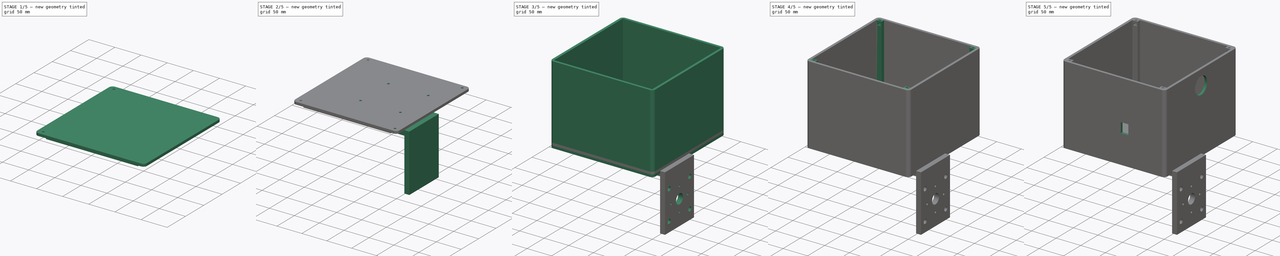
[diagram: build sequence overview — one tinted view per stage of 5, left to right]
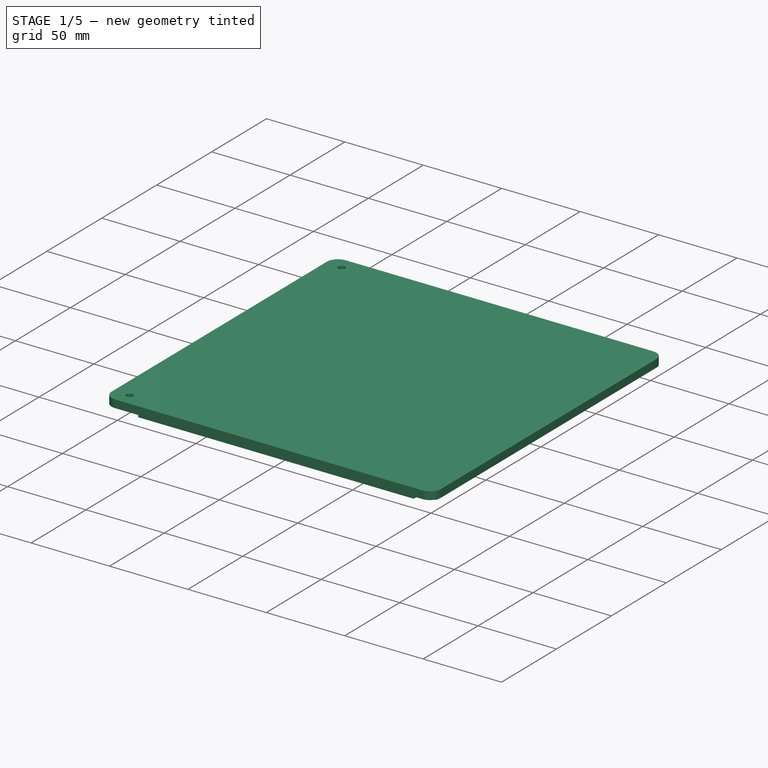
[diagram: stage 1 of 5 — iso view after this stage's code; geometry added in this stage tinted green]
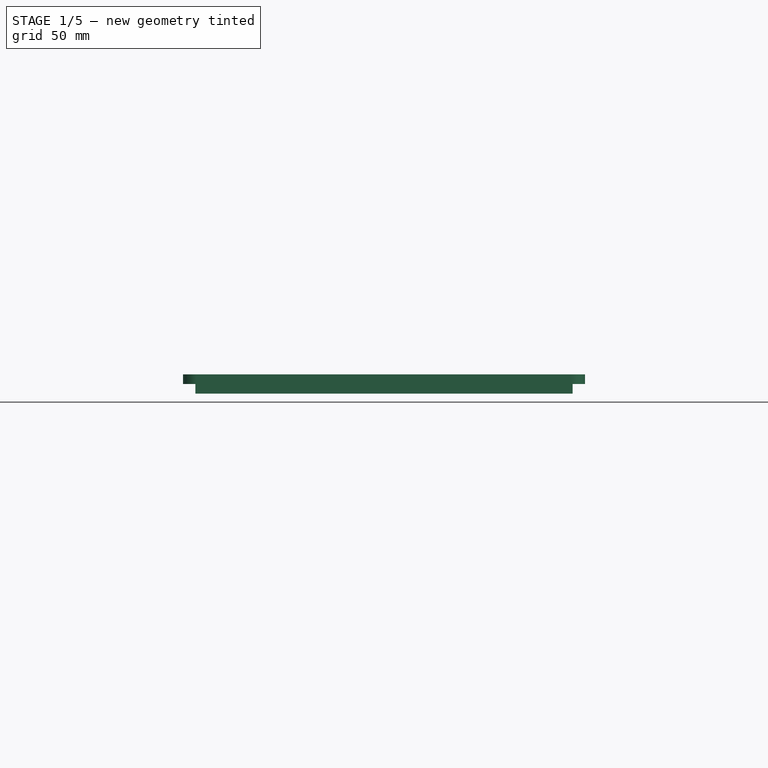
[diagram: stage 1 of 5 — front view after this stage's code; geometry added in this stage tinted green]
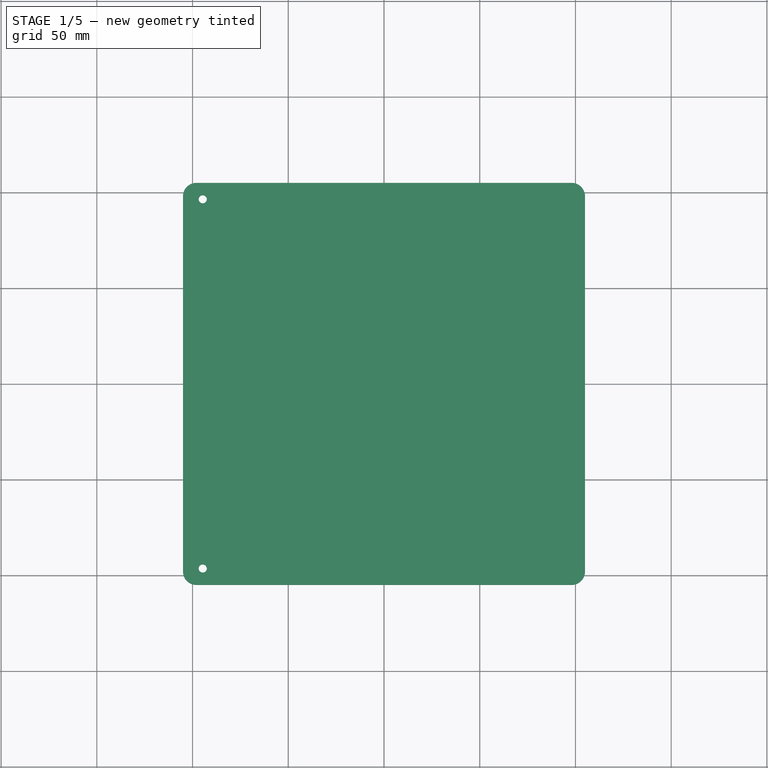
[diagram: stage 1 of 5 — top view after this stage's code; geometry added in this stage tinted green]
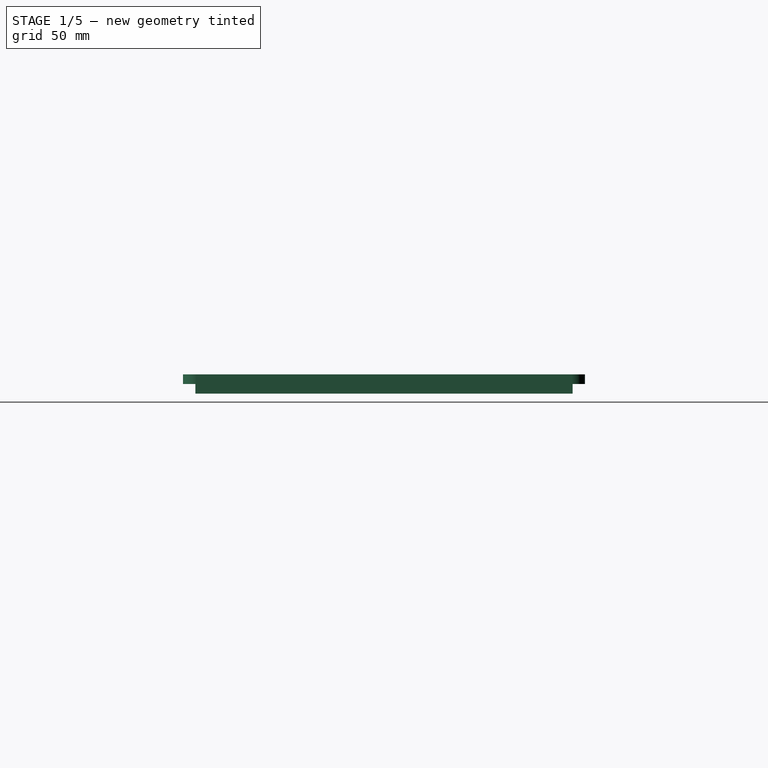
[diagram: stage 1 of 5 — right view after this stage's code; geometry added in this stage tinted green]
FCSTD DOCUMENT  (FreeCAD 0.21R33694 (Git))
Label: boxprototype
License: All rights reserved
LicenseURL: https://en.wikipedia.org/wiki/All_rights_reserved
objects: Sketcher::SketchObject×28, PartDesign::Pocket×18, PartDesign::Pad×10, PartDesign::Body×3, Spreadsheet::Sheet×1, App::MeasureDistance×1
note: 87 computed .brp shape members not serialized (recipe doc carries the construction recipe); baked Part::Feature solids carry a one-line shape summary decoded from their .brp

FEATURE [Sketcher::SketchObject] Sketch013
  FullyConstrained = true
  MapMode = 5
  Support = -> [XY_Plane001]
  expr: Constraints[16] = Spreadsheet.outside_radius
  expr: Constraints[17] = Spreadsheet.box_length
  expr: Constraints[18] = Spreadsheet.box_width
  sketch-geometry (8):
    g0: LineSegment StartX=-98 StartY=105 StartZ=0 EndX=98 EndY=105 EndZ=0
    g1: LineSegment StartX=105 StartY=98 StartZ=0 EndX=105 EndY=-98 EndZ=0
    g2: LineSegment StartX=98 StartY=-105 StartZ=0 EndX=-98 EndY=-105 EndZ=0
    g3: LineSegment StartX=-105 StartY=-98 StartZ=0 EndX=-105 EndY=98 EndZ=0
    g4: ArcOfCircle CenterX=98 CenterY=98 CenterZ=0 NormalX=0 NormalY=0 NormalZ=1 AngleXU=0 Radius=7 StartAngle=6e-16 EndAngle=1.5708
    g5: ArcOfCircle CenterX=-98 CenterY=98 CenterZ=0 NormalX=0 NormalY=0 NormalZ=1 AngleXU=0 Radius=7 StartAngle=1.5708 EndAngle=3.14159
    g6: ArcOfCircle CenterX=-98 CenterY=-98 CenterZ=0 NormalX=0 NormalY=0 NormalZ=1 AngleXU=0 Radius=7 StartAngle=3.14159 EndAngle=4.71239
    g7: ArcOfCircle CenterX=98 CenterY=-98 CenterZ=0 NormalX=0 NormalY=0 NormalZ=1 AngleXU=0 Radius=7 StartAngle=4.71239 EndAngle=6.28319
  constraints (19):
    c: Horizontal(g0)
    c: Horizontal(g2)
    c: Vertical(g1)
    c: Vertical(g3)
    c: Tangent(g0,g4) = 1.5708
    c: Tangent(g1,g4) = 1.5708
    c: Tangent(g0,g5) = 1.5708
    c: Tangent(g3,g5) = 1.5708
    c: Tangent(g3,g6) = 1.5708
    c: Tangent(g2,g6) = 1.5708
    c: Tangent(g2,g7) = 1.5708
    c: Tangent(g1,g7) = 1.5708
    c: Symmetric(g7,g5,g-1)
    c: Equal(g5,g6)
    c: Equal(g6,g7)
    c: Equal(g7,g4)
    c: Radius(g5) = 7
    c: DistanceX(g3,g1) = 210
    c: DistanceY(g2,g0) = 210
FEATURE [PartDesign::Pad] Pad005
  Direction = (0,0,1)
  Length = 5
  Length2 = 10
  Profile = -> Sketch013
  ReferenceAxis = -> Sketch013 [N_Axis]
  Type = 0
  expr: Length = Spreadsheet.box_wall_thickness
FEATURE [Sketcher::SketchObject] Sketch014
  FullyConstrained = true
  MapMode = 5
  Placement = pos=(0,0,0) rot=(1,0,0;3.14159rad)
  Support = -> [Pad005]
  expr: Constraints[10] = Spreadsheet.box_inside_width - 3
  expr: Constraints[9] = Spreadsheet.box_inside_length - Spreadsheet.lid_nut_size * 3 - 3
  sketch-geometry (4):
    g0: LineSegment StartX=-87.85 StartY=98.5 StartZ=0 EndX=87.85 EndY=98.5 EndZ=0
    g1: LineSegment StartX=87.85 StartY=98.5 StartZ=0 EndX=87.85 EndY=-98.5 EndZ=0
    g2: LineSegment StartX=87.85 StartY=-98.5 StartZ=0 EndX=-87.85 EndY=-98.5 EndZ=0
    g3: LineSegment StartX=-87.85 StartY=-98.5 StartZ=0 EndX=-87.85 EndY=98.5 EndZ=0
  constraints (11):
    c: Coincident(g0,g1)
    c: Coincident(g1,g2)
    c: Coincident(g2,g3)
    c: Coincident(g3,g0)
    c: Horizontal(g0)
    c: Horizontal(g2)
    c: Vertical(g1)
    c: Vertical(g3)
    c: Symmetric(g0,g2,g-1)
    c: DistanceX(g0,g0) = 175.7
    c: DistanceY(g1,g1) = 197
FEATURE [PartDesign::Pad] Pad006
  BaseFeature = -> Pad005
  Direction = (0,0,-1)
  Length = 5
  Length2 = 10
  Profile = -> Sketch014
  ReferenceAxis = -> Sketch014 [N_Axis]
  Type = 0
  expr: Length = Spreadsheet.box_wall_thickness
FEATURE [Sketcher::SketchObject] Sketch015
  FullyConstrained = true
  MapMode = 5
  Placement = pos=(0,0,0) rot=(1,0,0;3.14159rad)
  Support = -> [Pad006]
  expr: Constraints[10] = (Spreadsheet.box_inside_width - 2 * Spreadsheet.lid_nut_size) / 2
  expr: Constraints[11] = (Spreadsheet.box_inside_length - Spreadsheet.lid_nut_size * 3) / 2 - 1.5
  expr: Constraints[8] = Spreadsheet.lid_nut_size * 1.5
  expr: Constraints[9] = Spreadsheet.box_inside_width - 2 * Spreadsheet.lid_nut_size - 3
  sketch-geometry (4):
    g0: LineSegment StartX=87.85 StartY=92.9 StartZ=0 EndX=98.5 EndY=92.9 EndZ=0
    g1: LineSegment StartX=98.5 StartY=92.9 StartZ=0 EndX=98.5 EndY=-89.9 EndZ=0
    g2: LineSegment StartX=98.5 StartY=-89.9 StartZ=0 EndX=87.85 EndY=-89.9 EndZ=0
    g3: LineSegment StartX=87.85 StartY=-89.9 StartZ=0 EndX=87.85 EndY=92.9 EndZ=0
  constraints (12):
    c: Coincident(g0,g1)
    c: Coincident(g1,g2)
    c: Coincident(g2,g3)
    c: Coincident(g3,g0)
    c: Horizontal(g0)
    c: Horizontal(g2)
    c: Vertical(g1)
    c: Vertical(g3)
    c: DistanceX(g0,g0) = 10.65
    c: DistanceY(g1,g1) = 182.8
    c: DistanceY(g-1,g0) = 92.9
    c: DistanceX(g-1,g0) = 87.85
FEATURE [PartDesign::Pad] Pad007
  BaseFeature = -> Pad006
  Direction = (0,0,-1)
  Length = 5
  Length2 = 10
  Profile = -> Sketch015
  ReferenceAxis = -> Sketch015 [N_Axis]
  Type = 0
  expr: Length = Spreadsheet.box_wall_thickness
FEATURE [Sketcher::SketchObject] Sketch016
  FullyConstrained = true
  MapMode = 5
  Placement = pos=(0,0,0) rot=(1,0,0;3.14159rad)
  Support = -> [Pad007]
  expr: Constraints[10] = (Spreadsheet.box_inside_length - Spreadsheet.lid_nut_size * 3) / 2 - 1.5
  expr: Constraints[11] = (Spreadsheet.box_inside_width - Spreadsheet.lid_nut_size * 2) / 2
  expr: Constraints[8] = Spreadsheet.lid_nut_size * 1.5
  expr: Constraints[9] = Spreadsheet.box_inside_width - Spreadsheet.lid_nut_size * 2 - 3
  sketch-geometry (4):
    g0: LineSegment StartX=-98.5 StartY=92.9 StartZ=0 EndX=-87.85 EndY=92.9 EndZ=0
    g1: LineSegment StartX=-87.85 StartY=92.9 StartZ=0 EndX=-87.85 EndY=-89.9 EndZ=0
    g2: LineSegment StartX=-87.85 StartY=-89.9 StartZ=0 EndX=-98.5 EndY=-89.9 EndZ=0
    g3: LineSegment StartX=-98.5 StartY=-89.9 StartZ=0 EndX=-98.5 EndY=92.9 EndZ=0
  constraints (12):
    c: Coincident(g0,g1)
    c: Coincident(g1,g2)
    c: Coincident(g2,g3)
    c: Coincident(g3,g0)
    c: Horizontal(g0)
    c: Horizontal(g2)
    c: Vertical(g1)
    c: Vertical(g3)
    c: DistanceX(g0,g0) = 10.65
    c: DistanceY(g1,g1) = 182.8
    c: DistanceX(g0,g-1) = 87.85
    c: DistanceY(g-1,g0) = 92.9
FEATURE [PartDesign::Pad] Pad008
  BaseFeature = -> Pad007
  Direction = (0,0,-1)
  Length = 5
  Length2 = 10
  Profile = -> Sketch016
  ReferenceAxis = -> Sketch016 [N_Axis]
  Type = 0
  expr: Length = Spreadsheet.box_wall_thickness
FEATURE [Sketcher::SketchObject] Sketch017
  FullyConstrained = true
  MapMode = 5
  Placement = pos=(0,0,0) rot=(1,0,0;3.14159rad)
  Support = -> [Pad008]
  expr: Constraints[0] = Spreadsheet.lid_screw_size
  expr: Constraints[1] = Spreadsheet.box_inside_length / 2 - Spreadsheet.lid_nut_size * 0.75
  expr: Constraints[2] = Spreadsheet.box_inside_width / 2 - Spreadsheet.lid_nut_size * 0.5
  sketch-geometry (1):
    g0: Circle CenterX=-94.675 CenterY=96.45 CenterZ=0 NormalX=0 NormalY=0 NormalZ=1 AngleXU=0 Radius=2.125
  constraints (3):
    c: Diameter(g0) = 4.25
    c: DistanceX(g0,g-1) = 94.675
    c: DistanceY(g-1,g0) = 96.45
FEATURE [Sketcher::SketchObject] Sketch018
  FullyConstrained = true
  MapMode = 5
  Placement = pos=(0,0,0) rot=(1,0,0;3.14159rad)
  Support = -> [Pad008]
  expr: Constraints[0] = Spreadsheet.lid_screw_size
  expr: Constraints[1] = Spreadsheet.box_inside_width / 2 - Spreadsheet.lid_nut_size * 0.5
  expr: Constraints[2] = Spreadsheet.box_inside_length / 2 - Spreadsheet.lid_nut_size * 0.75
  sketch-geometry (1):
    g0: Circle CenterX=94.675 CenterY=96.45 CenterZ=0 NormalX=0 NormalY=0 NormalZ=1 AngleXU=0 Radius=2.125
  constraints (3):
    c: Diameter(g0) = 4.25
    c: DistanceY(g-1,g0) = 96.45
    c: DistanceX(g-1,g0) = 94.675
FEATURE [Sketcher::SketchObject] Sketch019
  FullyConstrained = true
  MapMode = 5
  Placement = pos=(0,0,0) rot=(1,0,0;3.14159rad)
  Support = -> [Pad008]
  expr: Constraints[0] = Spreadsheet.lid_screw_size
  expr: Constraints[1] = Spreadsheet.box_inside_length / 2 - Spreadsheet.lid_nut_size * 0.75
  expr: Constraints[2] = Spreadsheet.box_inside_width / 2 - Spreadsheet.lid_nut_size * 0.5
  sketch-geometry (1):
    g0: Circle CenterX=94.675 CenterY=-96.45 CenterZ=0 NormalX=0 NormalY=0 NormalZ=1 AngleXU=0 Radius=2.125
  constraints (3):
    c: Diameter(g0) = 4.25
    c: DistanceX(g-1,g0) = 94.675
    c: DistanceY(g0,g-1) = 96.45
FEATURE [Sketcher::SketchObject] Sketch020
  FullyConstrained = true
  MapMode = 5
  Placement = pos=(0,0,0) rot=(1,0,0;3.14159rad)
  Support = -> [Pad008]
  expr: Constraints[0] = Spreadsheet.lid_screw_size
  expr: Constraints[1] = Spreadsheet.box_inside_length / 2 - Spreadsheet.lid_nut_size * 0.75
  expr: Constraints[2] = Spreadsheet.box_inside_width / 2 - Spreadsheet.lid_nut_size * 0.5
  sketch-geometry (1):
    g0: Circle CenterX=-94.675 CenterY=-96.45 CenterZ=0 NormalX=0 NormalY=0 NormalZ=1 AngleXU=0 Radius=2.125
  constraints (3):
    c: Diameter(g0) = 4.25
    c: DistanceX(g0,g-1) = 94.675
    c: DistanceY(g0,g-1) = 96.45
FEATURE [PartDesign::Pocket] Pocket006
  BaseFeature = -> Pad008
  Direction = (0,0,1)
  Length = 5
  Length2 = 5
  Profile = -> Sketch017
  ReferenceAxis = -> Sketch017 [N_Axis]
  Type = 0
  expr: Length = Spreadsheet.box_wall_thickness
FEATURE [PartDesign::Pocket] Pocket007
  BaseFeature = -> Pocket006
  Direction = (0,0,1)
  Length = 5
  Length2 = 5
  Profile = -> Sketch020
  ReferenceAxis = -> Sketch020 [N_Axis]
  Type = 0
  expr: Length = Spreadsheet.box_wall_thickness
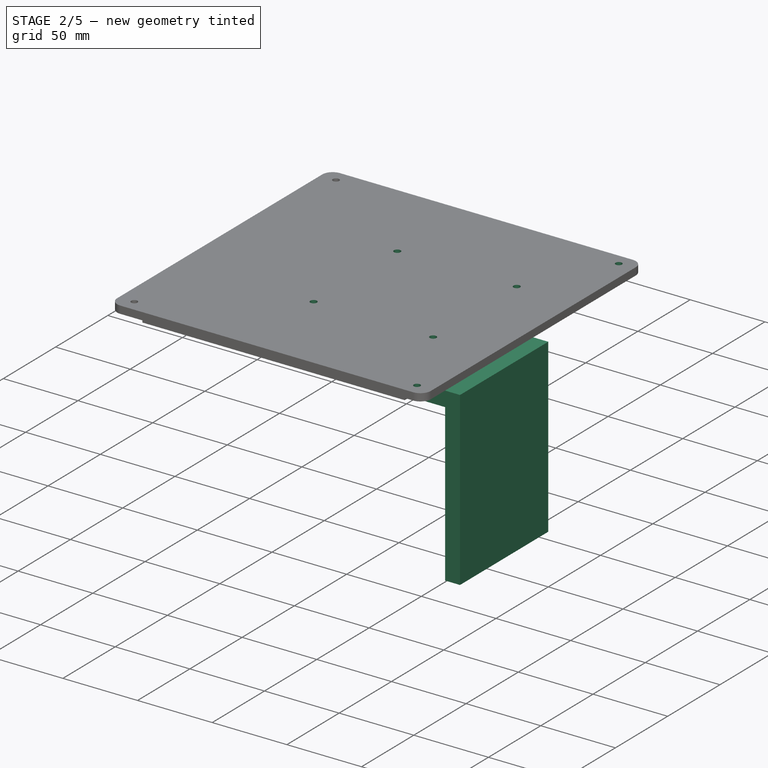
[diagram: stage 2 of 5 — iso view after this stage's code; geometry added in this stage tinted green]
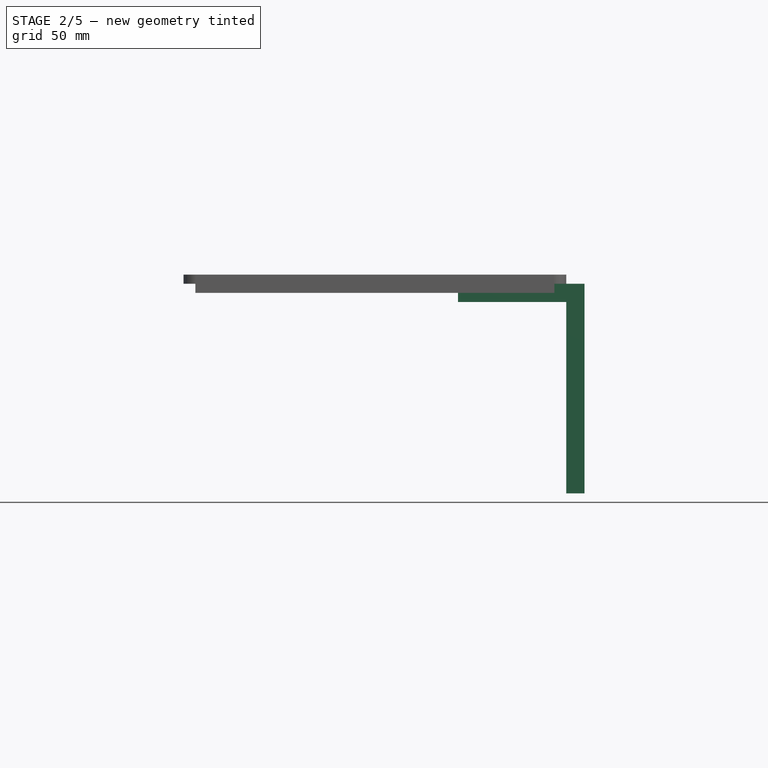
[diagram: stage 2 of 5 — front view after this stage's code; geometry added in this stage tinted green]
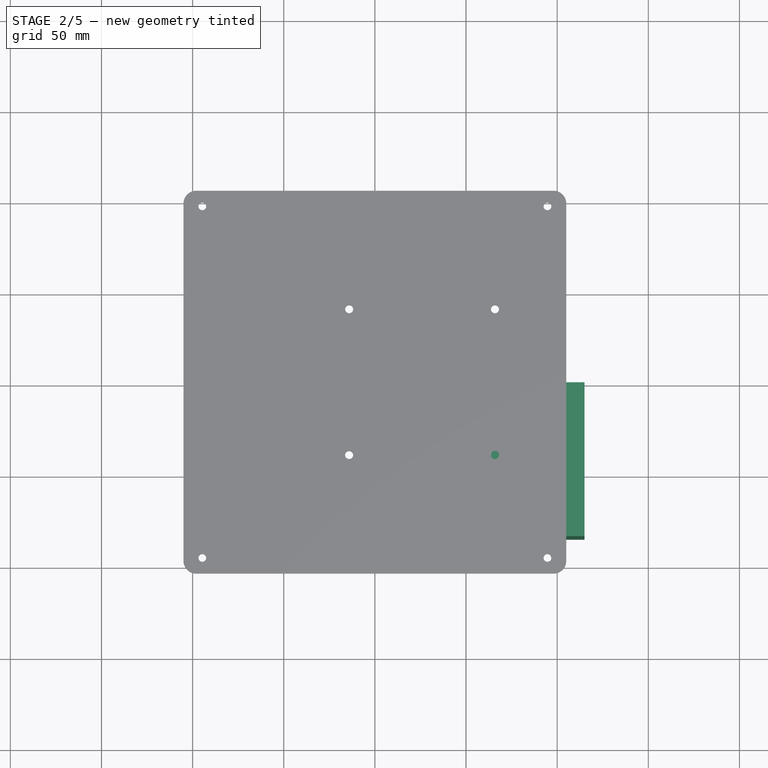
[diagram: stage 2 of 5 — top view after this stage's code; geometry added in this stage tinted green]
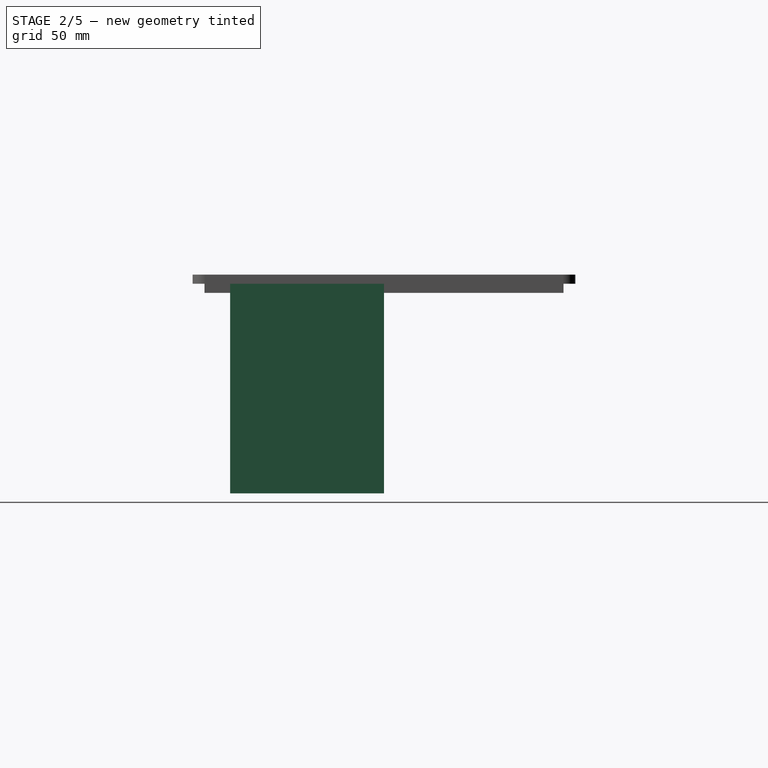
[diagram: stage 2 of 5 — right view after this stage's code; geometry added in this stage tinted green]
FEATURE [PartDesign::Pocket] Pocket008
  BaseFeature = -> Pocket007
  Direction = (0,0,1)
  Length = 5
  Length2 = 5
  Profile = -> Sketch018
  ReferenceAxis = -> Sketch018 [N_Axis]
  Type = 0
  expr: Length = Spreadsheet.box_wall_thickness
FEATURE [PartDesign::Pocket] Pocket009
  BaseFeature = -> Pocket008
  Direction = (0,0,1)
  Length = 5
  Length2 = 5
  Profile = -> Sketch019
  ReferenceAxis = -> Sketch019 [N_Axis]
  Type = 0
  expr: Length = Spreadsheet.box_wall_thickness
FEATURE [PartDesign::Body] Body
  Group = -> [Sketch,Pad,Sketch001,Pocket,Sketch003,Pad001,Sketch004,Sketch005,Pad002,Sketch006,Sketch007,Pad003,Pad004,Sketch008,Pocket001,Pocket002,Sketch009,Sketch010,Pocket003,Pocket004,Sketch011,Pocket005,Sketch021,Pocket010,Sketch022,Pocket011]
  Origin = -> Origin
  Tip = -> Pocket011
FEATURE [Sketcher::SketchObject] Sketch024
  FullyConstrained = true
  Placement = pos=(0,0,0) rot=(1,0,0;1.5708rad)
  expr: Constraints[10] = Spreadsheet.antenna_mount_wall_thickness
  expr: Constraints[13] = 50 + Spreadsheet.box_wall_thickness + Spreadsheet.antenna_mount_screw_size + Spreadsheet.antenna_mount_wall_thickness
  expr: Constraints[16] = Spreadsheet.box_length / 2
  expr: Constraints[1] = 50 + Spreadsheet.box_wall_thickness + Spreadsheet.antenna_mount_screw_size
  expr: Constraints[4] = 40 + Spreadsheet.antenna_mount_screw_hole_distance + Spreadsheet.box_wall_thickness
  expr: Constraints[7] = Spreadsheet.antenna_mount_wall_thickness
  sketch-geometry (6):
    g0: LineSegment StartX=45.6 StartY=-10 StartZ=0 EndX=105 EndY=-10 EndZ=0
    g1: LineSegment StartX=105 StartY=-10 StartZ=0 EndX=105 EndY=-115 EndZ=0
    g2: LineSegment StartX=45.6 StartY=-10 StartZ=0 EndX=45.6 EndY=0 EndZ=0
    g3: LineSegment StartX=105 StartY=-115 StartZ=0 EndX=115 EndY=-115 EndZ=0
    g4: LineSegment StartX=45.6 StartY=0 StartZ=0 EndX=115 EndY=0 EndZ=0
    g5: LineSegment StartX=115 StartY=0 StartZ=0 EndX=115 EndY=-115 EndZ=0
  constraints (18):
    c: Horizontal(g0)
    c: DistanceX(g0,g0) = 59.4
    c: Coincident(g1,g0)
    c: Vertical(g1)
    c: DistanceY(g1,g1) = 105
    c: Coincident(g2,g0)
    c: Vertical(g2)
    c: DistanceY(g2,g2) = 10
    c: Coincident(g3,g1)
    c: Horizontal(g3)
    c: DistanceX(g3,g3) = 10
    c: Coincident(g4,g2)
    c: Horizontal(g4)
    c: DistanceX(g4,g4) = 69.4
    c: Coincident(g5,g4)
    c: Coincident(g5,g3)
    c: DistanceX(g-1,g0) = 105
    c: DistanceY(g-1,g2) = 0
FEATURE [PartDesign::Pad] Pad009
  Direction = (0,-1,2e-16)
  Length = 84.4
  Length2 = 10
  Placement = pos=(0,0,0) rot=(1,0,0;1.5708rad)
  Profile = -> Sketch024
  ReferenceAxis = -> Sketch024 [N_Axis]
  Type = 0
  expr: Length = Spreadsheet.antenna_mount_screw_hole_distance + Spreadsheet.antenna_mount_screw_size + 20
FEATURE [PartDesign::Body] Body002  label="Dish Mount"
  Group = -> [Sketch024,Pad009,Sketch025,Pocket013,Sketch026,Pocket014,Sketch027,Pocket015,Sketch029,Pocket017]
  Origin = -> Origin002
  Placement = pos=(0,45,160) rot=(0,0,1;0rad)
  Tip = -> Pocket017
FEATURE [Sketcher::SketchObject] Sketch030
  FullyConstrained = false
  MapMode = 5
  Placement = pos=(0,0,-5) rot=(1,0,0;3.14159rad)
  sketch-geometry (4):
    g0: LineSegment StartX=-61.649 StartY=84.9154 StartZ=0 EndX=72.8495 EndY=84.9154 EndZ=0
    g1: LineSegment StartX=72.8495 StartY=84.9154 StartZ=0 EndX=72.8495 EndY=-83.7057 EndZ=0
    g2: LineSegment StartX=72.8495 StartY=-83.7057 StartZ=0 EndX=-61.649 EndY=-83.7057 EndZ=0
    g3: LineSegment StartX=-61.649 StartY=-83.7057 StartZ=0 EndX=-61.649 EndY=84.9154 EndZ=0
  constraints (8):
    c: Coincident(g0,g1)
    c: Coincident(g1,g2)
    c: Coincident(g2,g3)
    c: Coincident(g3,g0)
    c: Horizontal(g0)
    c: Horizontal(g2)
    c: Vertical(g1)
    c: Vertical(g3)
FEATURE [PartDesign::Pocket] Pocket018
  BaseFeature = -> Pocket009
  Direction = (0,0,1)
  Length = 5
  Length2 = 5
  Profile = -> Sketch030
  ReferenceAxis = -> Sketch030 [N_Axis]
  Type = 0
FEATURE [Sketcher::SketchObject] Sketch031
  FullyConstrained = false
  MapMode = 5
  Placement = pos=(0,0,5) rot=(0,0,1;0rad)
  Support = -> [Pocket018]
  sketch-geometry (4):
    g0: Circle CenterX=-14.1093 CenterY=40 CenterZ=0 NormalX=0 NormalY=0 NormalZ=1 AngleXU=0 Radius=2.2
    g1: Circle CenterX=65.8907 CenterY=40 CenterZ=0 NormalX=0 NormalY=0 NormalZ=1 AngleXU=0 Radius=2.2
    g2: Circle CenterX=65.8907 CenterY=-40 CenterZ=0 NormalX=0 NormalY=0 NormalZ=1 AngleXU=0 Radius=2.2
    g3: Circle CenterX=-14.1093 CenterY=-40 CenterZ=0 NormalX=0 NormalY=0 NormalZ=1 AngleXU=0 Radius=2.2
  constraints (11):
    c: DistanceY(g3,g-1) = 40
    c: DistanceY(g-1,g0) = 40
    c: DistanceX(g3,g0) = 0
    c: DistanceX(g0,g1) = 80
    c: DistanceX(g3,g2) = 80
    c: DistanceY(g-1,g1) = 40
    c: DistanceY(g2,g-1) = 40
    c: Diameter(g0) = 4.4
    c: Diameter(g1) = 4.4
    c: Diameter(g2) = 4.4
    c: Diameter(g3) = 4.4
FEATURE [PartDesign::Pocket] Pocket019
  BaseFeature = -> Pocket018
  Direction = (0,0,-1)
  Length = 5
  Length2 = 5
  Profile = -> Sketch031
  ReferenceAxis = -> Sketch031 [N_Axis]
  Type = 0
  expr: Length = Spreadsheet.box_wall_thickness
FEATURE [PartDesign::Body] Body001  label="Lid"
  Group = -> [Sketch013,Pad005,Sketch014,Pad006,Sketch015,Pad007,Sketch016,Pad008,Sketch017,Sketch018,Sketch019,Sketch020,Pocket006,Pocket007,Pocket008,Pocket009,Sketch030,Pocket018,Sketch031,Pocket019]
  Origin = -> Origin001
  Placement = pos=(0,0,175) rot=(0,0,1;0rad)
  Tip = -> Pocket019
FEATURE [App::MeasureDistance] Distance  label="Distance: 212.30 mm"
  Distance = 212.299
  P1 = (-102.791,6.92691,155)
  P2 = (105,50.2328,150.736)
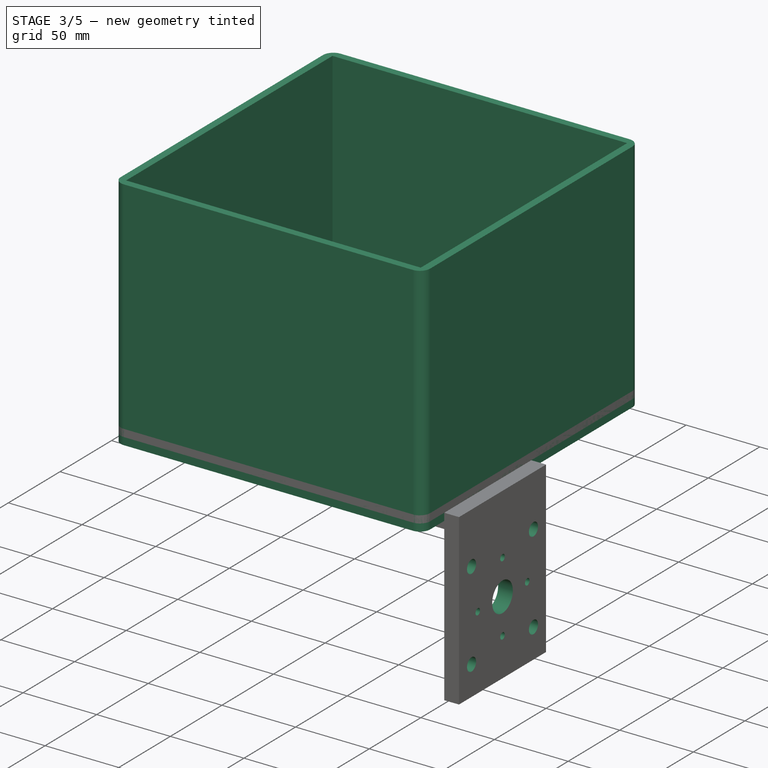
[diagram: stage 3 of 5 — iso view after this stage's code; geometry added in this stage tinted green]
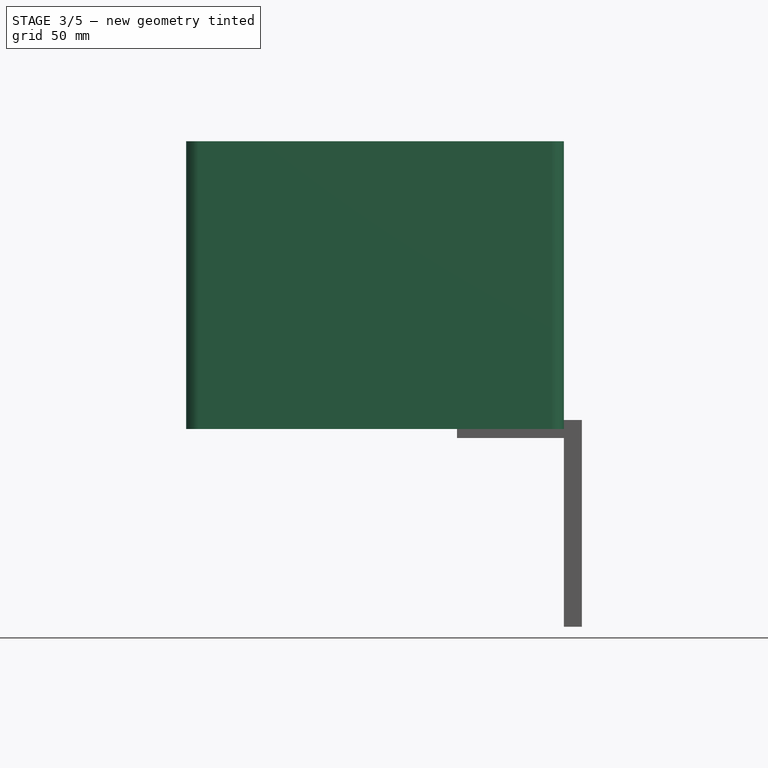
[diagram: stage 3 of 5 — front view after this stage's code; geometry added in this stage tinted green]
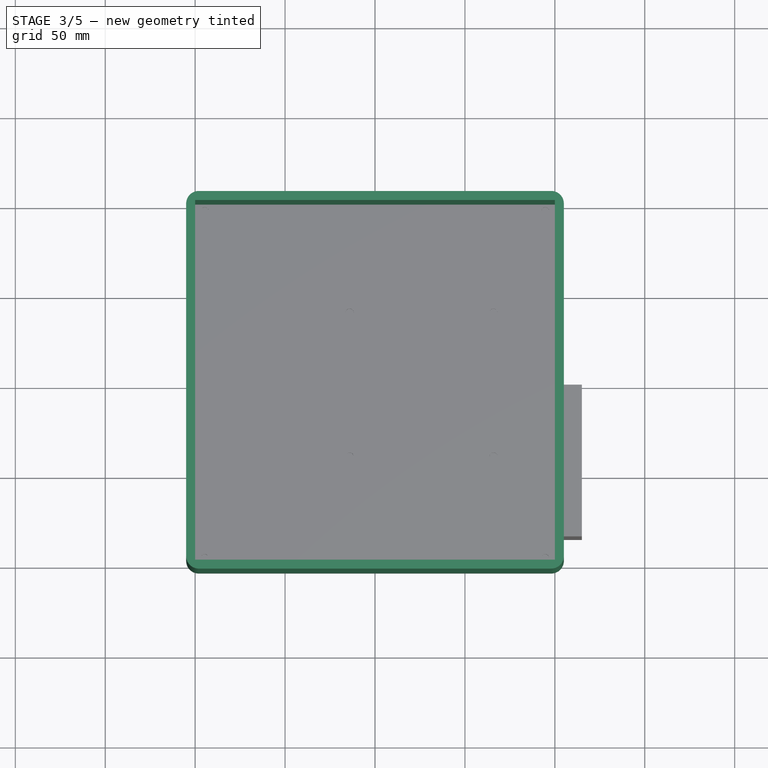
[diagram: stage 3 of 5 — top view after this stage's code; geometry added in this stage tinted green]
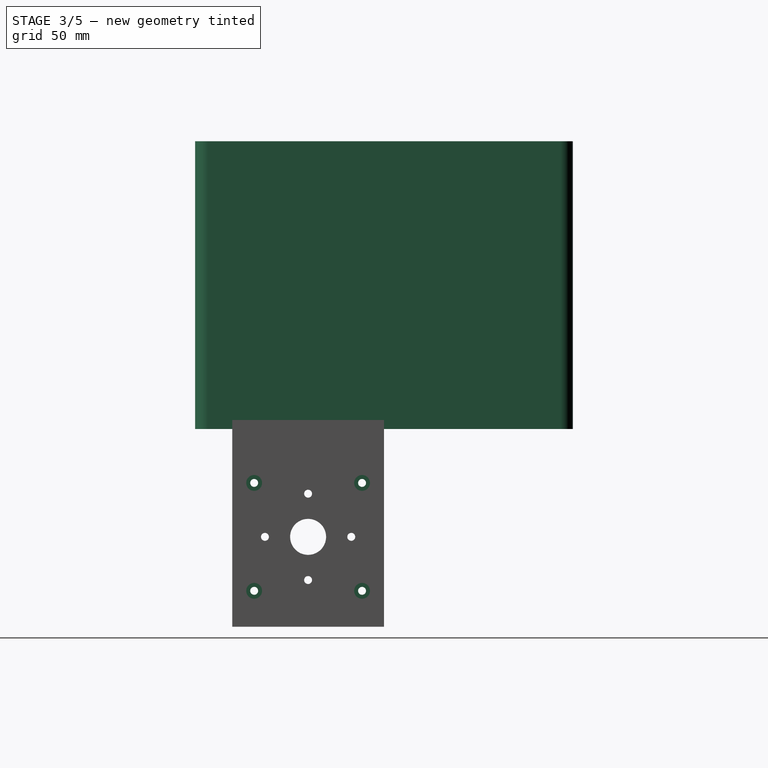
[diagram: stage 3 of 5 — right view after this stage's code; geometry added in this stage tinted green]
FEATURE [Sketcher::SketchObject] Sketch
  FullyConstrained = true
  Placement = pos=(0,0,-5) rot=(0,0,1;0rad)
  expr: .Placement.Base.z = -Spreadsheet.box_wall_thickness
  expr: Constraints[16] = Spreadsheet.outside_radius
  expr: Constraints[17] = Spreadsheet.box_length
  expr: Constraints[18] = Spreadsheet.box_width
  sketch-geometry (8):
    g0: LineSegment StartX=-98 StartY=105 StartZ=0 EndX=98 EndY=105 EndZ=0
    g1: LineSegment StartX=105 StartY=98 StartZ=0 EndX=105 EndY=-98 EndZ=0
    g2: LineSegment StartX=98 StartY=-105 StartZ=0 EndX=-98 EndY=-105 EndZ=0
    g3: LineSegment StartX=-105 StartY=-98 StartZ=0 EndX=-105 EndY=98 EndZ=0
    g4: ArcOfCircle CenterX=-98 CenterY=98 CenterZ=0 NormalX=0 NormalY=0 NormalZ=1 AngleXU=0 Radius=7 StartAngle=1.5708 EndAngle=3.14159
    g5: ArcOfCircle CenterX=-98 CenterY=-98 CenterZ=0 NormalX=0 NormalY=0 NormalZ=1 AngleXU=0 Radius=7 StartAngle=3.14159 EndAngle=4.71239
    g6: ArcOfCircle CenterX=98 CenterY=-98 CenterZ=0 NormalX=0 NormalY=0 NormalZ=1 AngleXU=0 Radius=7 StartAngle=4.71239 EndAngle=6.28319
    g7: ArcOfCircle CenterX=98 CenterY=98 CenterZ=0 NormalX=0 NormalY=0 NormalZ=1 AngleXU=0 Radius=7 StartAngle=-9e-16 EndAngle=1.5708
  constraints (19):
    c: Horizontal(g0)
    c: Horizontal(g2)
    c: Vertical(g1)
    c: Vertical(g3)
    c: Tangent(g0,g4) = 1.5708
    c: Tangent(g3,g4) = 1.5708
    c: Tangent(g3,g5) = 1.5708
    c: Tangent(g2,g5) = 1.5708
    c: Tangent(g2,g6) = 1.5708
    c: Tangent(g1,g6) = 1.5708
    c: Tangent(g0,g7) = 1.5708
    c: Tangent(g1,g7) = 1.5708
    c: Symmetric(g4,g6,g-1)
    c: Equal(g4,g7)
    c: Equal(g7,g6)
    c: Equal(g6,g5)
    c: Radius(g4) = 7
    c: DistanceX(g3,g1) = 210
    c: DistanceY(g2,g0) = 210
FEATURE [Spreadsheet::Sheet] Spreadsheet
  cells = A1='box_length; B1(box_length)=210; C1='hall_effect_x; D1(hall_effect_x)=5; A2='box_width; B2(box_width)=210; C2='hall_effect_y; D2(hall_effect_y)=1.5; A3='box_height; B3(box_height)=160; C3='hall_effect_distance; D3(hall_effect_distance)=65; A4='outside_radius; B4(outside_radius)==B6 + 2; A5='inside_radius; B5(inside_radius)==B4 - B6; A6='box_wall_thickness; B6(box_wall_thickness)=5; A7='box_inside_length; B7(box_inside_length)==B1 - B6 * 2; A8='box_inside_width; B8(box_inside_width)==B2 - B6 * 2; A9='lid_nut_size; B9(lid_nut_size)=7.1; A10='lid_screw_size; B10(lid_screw_size)=4.25; A11='lid_nut_thickness; B11(lid_nut_thickness)=3.7; A12='motor_size; B12(motor_size)=20.4; A13='motor_screw_size; B13(motor_screw_size)=4.4; A14='motor_screw_distance; B14(motor_screw_distance)=25; A15='switch_length; B15(switch_length)=20.4; A16='switch_width; B16(switch_width)=15.4; A17='antenna_mount_screw_size; B17(antenna_mount_screw_size)=4.4; A18='antenna_mount_screw_hole_distance; B18(antenna_mount_screw_hole_distance)=60; A19='antenna_mount_wall_thickness; B19(antenna_mount_wall_thickness)=10; A20='dish_mounting_screw_size; B20(dish_mounting_screw_size)=4.4; A21='dish_mounting_hole_distance; B21(dish_mounting_hole_distance)=48
FEATURE [Sketcher::SketchObject] Sketch001
  FullyConstrained = true
  expr: Constraints[8] = Spreadsheet.box_inside_length
  expr: Constraints[9] = Spreadsheet.box_inside_width
  sketch-geometry (4):
    g0: LineSegment StartX=-100 StartY=100 StartZ=0 EndX=100 EndY=100 EndZ=0
    g1: LineSegment StartX=100 StartY=100 StartZ=0 EndX=100 EndY=-100 EndZ=0
    g2: LineSegment StartX=100 StartY=-100 StartZ=0 EndX=-100 EndY=-100 EndZ=0
    g3: LineSegment StartX=-100 StartY=-100 StartZ=0 EndX=-100 EndY=100 EndZ=0
  constraints (11):
    c: Coincident(g0,g1)
    c: Coincident(g1,g2)
    c: Coincident(g2,g3)
    c: Coincident(g3,g0)
    c: Horizontal(g0)
    c: Horizontal(g2)
    c: Vertical(g1)
    c: Vertical(g3)
    c: DistanceX(g0,g0) = 200
    c: DistanceY(g1,g1) = 200
    c: Symmetric(g0,g1,g-1)
FEATURE [PartDesign::Pad] Pad
  Direction = (0,0,1)
  Length = 160
  Length2 = 10
  Placement = pos=(0,0,-5) rot=(0,0,1;0rad)
  Profile = -> Sketch
  ReferenceAxis = -> Sketch [N_Axis]
  Type = 0
  expr: Length = Spreadsheet.box_height
FEATURE [PartDesign::Pocket] Pocket
  BaseFeature = -> Pad
  Direction = (0,0,-1)
  Length = 5
  Length2 = 5
  Placement = pos=(0,0,-5) rot=(0,0,1;0rad)
  Profile = -> Sketch001
  ReferenceAxis = -> Sketch001 [N_Axis]
  Reversed = true
  Type = 1
FEATURE [Sketcher::SketchObject] Sketch025
  FullyConstrained = true
  MapMode = 5
  Placement = pos=(0,0,0) rot=(0,0,1;3.14159rad)
  Support = -> [Pad009]
  expr: Constraints[0] = Spreadsheet.antenna_mount_screw_size
  expr: Constraints[1] = Spreadsheet.antenna_mount_screw_size
  expr: Constraints[2] = (Spreadsheet.antenna_mount_screw_hole_distance + Spreadsheet.antenna_mount_screw_size + 20) / 2 + Spreadsheet.antenna_mount_screw_hole_distance / 2
  expr: Constraints[3] = (Spreadsheet.antenna_mount_screw_hole_distance + Spreadsheet.antenna_mount_screw_size + 20) / 2 - Spreadsheet.antenna_mount_screw_hole_distance / 2
  expr: Constraints[4] = Spreadsheet.box_length / 2 - 40
  expr: Constraints[5] = Spreadsheet.box_length / 2 - 40
  sketch-geometry (2):
    g0: Circle CenterX=-65 CenterY=12.2 CenterZ=0 NormalX=0 NormalY=0 NormalZ=1 AngleXU=0 Radius=2.2
    g1: Circle CenterX=-65 CenterY=72.2 CenterZ=0 NormalX=0 NormalY=0 NormalZ=1 AngleXU=0 Radius=2.2
  constraints (6):
    c: Diameter(g1) = 4.4
    c: Diameter(g0) = 4.4
    c: DistanceY(g-1,g1) = 72.2
    c: DistanceY(g-1,g0) = 12.2
    c: DistanceX(g0,g-1) = 65
    c: DistanceX(g1,g-1) = 65
FEATURE [PartDesign::Pocket] Pocket013
  BaseFeature = -> Pad009
  Direction = (0,-3e-16,-1)
  Length = 10
  Length2 = 5
  Placement = pos=(0,0,0) rot=(1,0,0;1.5708rad)
  Profile = -> Sketch025
  ReferenceAxis = -> Sketch025 [N_Axis]
  Type = 0
  expr: Length = Spreadsheet.antenna_mount_wall_thickness
FEATURE [Sketcher::SketchObject] Sketch026
  FullyConstrained = true
  MapMode = 5
  Placement = pos=(115,0,0) rot=(0.707107,0,0.707107;3.14159rad)
  Support = -> [Pocket013]
  expr: Constraints[0] = Spreadsheet.antenna_mount_screw_size
  expr: Constraints[10] = Spreadsheet.antenna_mount_screw_size
  expr: Constraints[11] = Spreadsheet.antenna_mount_screw_size
  expr: Constraints[12] = 20
  expr: Constraints[13] = Spreadsheet.antenna_mount_screw_hole_distance / 2
  expr: Constraints[14] = Spreadsheet.antenna_mount_screw_hole_distance / 2
  expr: Constraints[15] = Spreadsheet.dish_mounting_hole_distance / 2
  expr: Constraints[16] = Spreadsheet.dish_mounting_screw_size
  expr: Constraints[18] = Spreadsheet.dish_mounting_hole_distance / 2
  expr: Constraints[1] = Spreadsheet.antenna_mount_screw_size
  expr: Constraints[20] = Spreadsheet.dish_mounting_screw_size
  expr: Constraints[21] = Spreadsheet.dish_mounting_screw_size
  expr: Constraints[22] = Spreadsheet.dish_mounting_hole_distance / 2
  expr: Constraints[24] = Spreadsheet.dish_mounting_hole_distance / 2
  expr: Constraints[25] = 0
  expr: Constraints[26] = Spreadsheet.dish_mounting_screw_size
  expr: Constraints[2] = (Spreadsheet.antenna_mount_screw_hole_distance + Spreadsheet.antenna_mount_screw_size + 20) / 2 + Spreadsheet.antenna_mount_screw_hole_distance / 2
  expr: Constraints[3] = (Spreadsheet.antenna_mount_screw_hole_distance + Spreadsheet.antenna_mount_screw_size + 20) / 2 - Spreadsheet.antenna_mount_screw_hole_distance / 2
  expr: Constraints[4] = 25 + Spreadsheet.antenna_mount_wall_thickness
  expr: Constraints[5] = 25 + Spreadsheet.antenna_mount_wall_thickness
  expr: Constraints[6] = 25 + Spreadsheet.antenna_mount_wall_thickness + Spreadsheet.antenna_mount_screw_hole_distance
  expr: Constraints[7] = 25 + Spreadsheet.antenna_mount_wall_thickness + Spreadsheet.antenna_mount_screw_hole_distance
  expr: Constraints[8] = (Spreadsheet.antenna_mount_screw_hole_distance + Spreadsheet.antenna_mount_screw_size + 20) / 2 + Spreadsheet.antenna_mount_screw_hole_distance / 2
  expr: Constraints[9] = (Spreadsheet.antenna_mount_screw_hole_distance + Spreadsheet.antenna_mount_screw_size + 20) / 2 - Spreadsheet.antenna_mount_screw_hole_distance / 2
  sketch-geometry (9):
    g0: Circle CenterX=-35 CenterY=72.2 CenterZ=0 NormalX=0 NormalY=0 NormalZ=1 AngleXU=0 Radius=2.2
    g1: Circle CenterX=-35 CenterY=12.2 CenterZ=0 NormalX=0 NormalY=0 NormalZ=1 AngleXU=0 Radius=2.2
    g2: Circle CenterX=-95 CenterY=72.2 CenterZ=0 NormalX=0 NormalY=0 NormalZ=1 AngleXU=0 Radius=2.2
    g3: Circle CenterX=-95 CenterY=12.2 CenterZ=0 NormalX=0 NormalY=0 NormalZ=1 AngleXU=0 Radius=2.2
    g4: Circle CenterX=-65 CenterY=42.2 CenterZ=0 NormalX=0 NormalY=0 NormalZ=1 AngleXU=0 Radius=10
    g5: Circle CenterX=-41 CenterY=42.2 CenterZ=0 NormalX=0 NormalY=0 NormalZ=1 AngleXU=0 Radius=2.2
    g6: Circle CenterX=-89 CenterY=42.2 CenterZ=0 NormalX=0 NormalY=0 NormalZ=1 AngleXU=0 Radius=2.2
    g7: Circle CenterX=-65 CenterY=18.2 CenterZ=0 NormalX=0 NormalY=0 NormalZ=1 AngleXU=0 Radius=2.2
    g8: Circle CenterX=-65 CenterY=66.2 CenterZ=0 NormalX=0 NormalY=0 NormalZ=1 AngleXU=0 Radius=2.2
  constraints (27):
    c: Diameter(g0) = 4.4
    c: Diameter(g1) = 4.4
    c: DistanceY(g-1,g0) = 72.2
    c: DistanceY(g-1,g1) = 12.2
    c: DistanceX(g1,g-1) = 35
    c: DistanceX(g0,g-1) = 35
    c: DistanceX(g2,g-1) = 95
    c: DistanceX(g3,g-1) = 95
    c: DistanceY(g-1,g2) = 72.2
    c: DistanceY(g-1,g3) = 12.2
    c: Diameter(g2) = 4.4
    c: Diameter(g3) = 4.4
    c: Diameter(g4) = 20
    c: DistanceX(g4,g0) = 30
    c: DistanceY(g4,g0) = 30
    c: DistanceX(g4,g5) = 24
    c: Diameter(g5) = 4.4
    c: DistanceY(g4,g5) = 0
    c: DistanceX(g6,g4) = 24
    c: DistanceY(g6,g4) = 0
    c: Diameter(g6) = 4.4
    c: Diameter(g7) = 4.4
    c: DistanceY(g7,g4) = 24
    c: DistanceX(g4,g7) = 0
    c: DistanceY(g4,g8) = 24
    c: DistanceX(g8,g4) = 0
    c: Diameter(g8) = 4.4
FEATURE [PartDesign::Pocket] Pocket014
  BaseFeature = -> Pocket013
  Direction = (-1,0,2e-16)
  Length = 10
  Length2 = 5
  Placement = pos=(0,0,0) rot=(1,0,0;1.5708rad)
  Profile = -> Sketch026
  ReferenceAxis = -> Sketch026 [N_Axis]
  Type = 0
  expr: Length = Spreadsheet.antenna_mount_wall_thickness
FEATURE [Sketcher::SketchObject] Sketch027
  FullyConstrained = true
  MapMode = 5
  Placement = pos=(105,0,0) rot=(0.707107,0,-0.707107;3.14159rad)
  Support = -> [Pocket014]
  expr: Constraints[0] = Spreadsheet.dish_mounting_screw_size * 2
  expr: Constraints[10] = (Spreadsheet.antenna_mount_screw_hole_distance + Spreadsheet.antenna_mount_screw_size + 20) / 2 - Spreadsheet.dish_mounting_hole_distance / 2
  expr: Constraints[11] = (Spreadsheet.antenna_mount_screw_hole_distance + Spreadsheet.antenna_mount_screw_size + 20) / 2 + Spreadsheet.dish_mounting_hole_distance / 2
  expr: Constraints[1] = (Spreadsheet.antenna_mount_screw_hole_distance + Spreadsheet.antenna_mount_screw_size + 20) / 2
  expr: Constraints[2] = Spreadsheet.antenna_mount_wall_thickness + 25 + Spreadsheet.antenna_mount_screw_hole_distance / 2 - Spreadsheet.dish_mounting_hole_distance / 2
  expr: Constraints[3] = Spreadsheet.dish_mounting_screw_size * 2
  expr: Constraints[4] = Spreadsheet.antenna_mount_wall_thickness + 25 + Spreadsheet.antenna_mount_screw_hole_distance / 2 + Spreadsheet.dish_mounting_hole_distance / 2
  expr: Constraints[5] = (Spreadsheet.antenna_mount_screw_hole_distance + Spreadsheet.antenna_mount_screw_size + 20) / 2
  expr: Constraints[6] = Spreadsheet.dish_mounting_screw_size * 2
  expr: Constraints[7] = Spreadsheet.dish_mounting_screw_size * 2
  expr: Constraints[8] = Spreadsheet.antenna_mount_wall_thickness + 25 + Spreadsheet.antenna_mount_screw_hole_distance / 2
  expr: Constraints[9] = Spreadsheet.antenna_mount_wall_thickness + 25 + Spreadsheet.antenna_mount_screw_hole_distance / 2
  sketch-geometry (4):
    g0: Circle CenterX=41 CenterY=42.2 CenterZ=0 NormalX=0 NormalY=0 NormalZ=1 AngleXU=0 Radius=4.4
    g1: Circle CenterX=89 CenterY=42.2 CenterZ=0 NormalX=0 NormalY=0 NormalZ=1 AngleXU=0 Radius=4.4
    g2: Circle CenterX=65 CenterY=18.2 CenterZ=0 NormalX=0 NormalY=0 NormalZ=1 AngleXU=0 Radius=4.4
    g3: Circle CenterX=65 CenterY=66.2 CenterZ=0 NormalX=0 NormalY=0 NormalZ=1 AngleXU=0 Radius=4.4
  constraints (12):
    c: Diameter(g0) = 8.8
    c: DistanceY(g-1,g0) = 42.2
    c: DistanceX(g-1,g0) = 41
    c: Diameter(g1) = 8.8
    c: DistanceX(g-1,g1) = 89
    c: DistanceY(g-1,g1) = 42.2
    c: Diameter(g2) = 8.8
    c: Diameter(g3) = 8.8
    c: DistanceX(g-1,g2) = 65
    c: DistanceX(g-1,g3) = 65
    c: DistanceY(g-1,g2) = 18.2
    c: DistanceY(g-1,g3) = 66.2
FEATURE [PartDesign::Pocket] Pocket015
  BaseFeature = -> Pocket014
  Direction = (1,0,2e-16)
  Length = 3
  Length2 = 5
  Placement = pos=(0,0,0) rot=(1,0,0;1.5708rad)
  Profile = -> Sketch027
  ReferenceAxis = -> Sketch027 [N_Axis]
  Type = 0
FEATURE [Sketcher::SketchObject] Sketch029
  FullyConstrained = true
  MapMode = 5
  Placement = pos=(115,0,0) rot=(0.707107,0,0.707107;3.14159rad)
  Support = -> [Pocket015]
  expr: Constraints[0] = Spreadsheet.antenna_mount_screw_size * 2
  expr: Constraints[10] = (Spreadsheet.antenna_mount_screw_hole_distance + Spreadsheet.antenna_mount_screw_size + 20) / 2 - Spreadsheet.antenna_mount_screw_hole_distance / 2
  expr: Constraints[11] = (Spreadsheet.antenna_mount_screw_hole_distance + Spreadsheet.antenna_mount_screw_size + 20) / 2 - Spreadsheet.antenna_mount_screw_hole_distance / 2
  expr: Constraints[1] = Spreadsheet.antenna_mount_screw_size * 2
  expr: Constraints[2] = Spreadsheet.antenna_mount_screw_size * 2
  expr: Constraints[3] = Spreadsheet.antenna_mount_screw_size * 2
  expr: Constraints[4] = 25 + Spreadsheet.antenna_mount_wall_thickness + Spreadsheet.antenna_mount_screw_hole_distance
  expr: Constraints[5] = 25 + Spreadsheet.antenna_mount_wall_thickness
  expr: Constraints[6] = 25 + Spreadsheet.antenna_mount_wall_thickness + Spreadsheet.antenna_mount_screw_hole_distance
  expr: Constraints[7] = 25 + Spreadsheet.antenna_mount_wall_thickness
  expr: Constraints[8] = (Spreadsheet.antenna_mount_screw_hole_distance + Spreadsheet.antenna_mount_screw_size + 20) / 2 + Spreadsheet.antenna_mount_screw_hole_distance / 2
  expr: Constraints[9] = (Spreadsheet.antenna_mount_screw_hole_distance + Spreadsheet.antenna_mount_screw_size + 20) / 2 + Spreadsheet.antenna_mount_screw_hole_distance / 2
  sketch-geometry (4):
    g0: Circle CenterX=-35 CenterY=72.2 CenterZ=0 NormalX=0 NormalY=0 NormalZ=1 AngleXU=0 Radius=4.4
    g1: Circle CenterX=-95 CenterY=12.2 CenterZ=0 NormalX=0 NormalY=0 NormalZ=1 AngleXU=0 Radius=4.4
    g2: Circle CenterX=-95 CenterY=72.2 CenterZ=0 NormalX=0 NormalY=0 NormalZ=1 AngleXU=0 Radius=4.4
    g3: Circle CenterX=-35 CenterY=12.2 CenterZ=0 NormalX=0 NormalY=0 NormalZ=1 AngleXU=0 Radius=4.4
  constraints (12):
    c: Diameter(g0) = 8.8
    c: Diameter(g1) = 8.8
    c: Diameter(g2) = 8.8
    c: Diameter(g3) = 8.8
    c: DistanceX(g2,g-1) = 95
    c: DistanceX(g3,g-1) = 35
    c: DistanceX(g1,g-1) = 95
    c: DistanceX(g0,g-1) = 35
    c: DistanceY(g-1,g2) = 72.2
    c: DistanceY(g-1,g0) = 72.2
    c: DistanceY(g-1,g3) = 12.2
    c: DistanceY(g-1,g1) = 12.2
FEATURE [PartDesign::Pocket] Pocket017
  BaseFeature = -> Pocket015
  Direction = (-1,0,2e-16)
  Length = 7
  Length2 = 5
  Placement = pos=(0,0,0) rot=(1,0,0;1.5708rad)
  Profile = -> Sketch029
  ReferenceAxis = -> Sketch029 [N_Axis]
  Type = 0
  expr: Length = Spreadsheet.antenna_mount_wall_thickness - 3
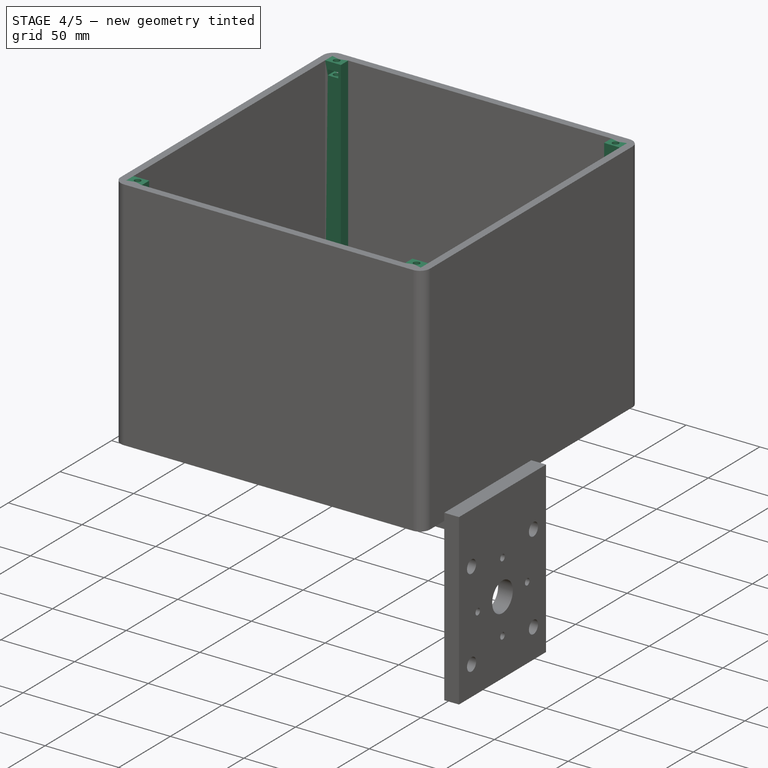
[diagram: stage 4 of 5 — iso view after this stage's code; geometry added in this stage tinted green]
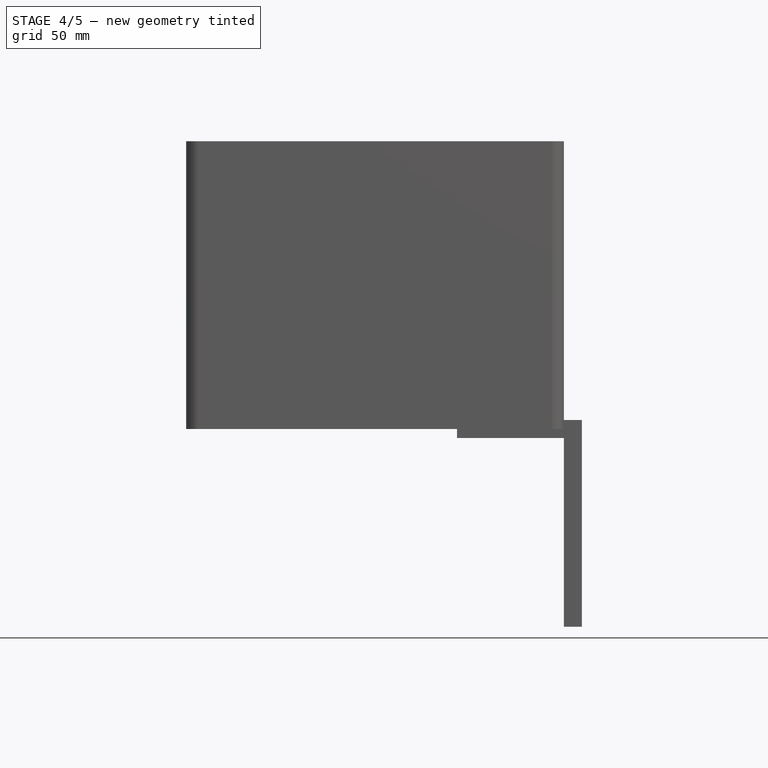
[diagram: stage 4 of 5 — front view after this stage's code; geometry added in this stage tinted green]
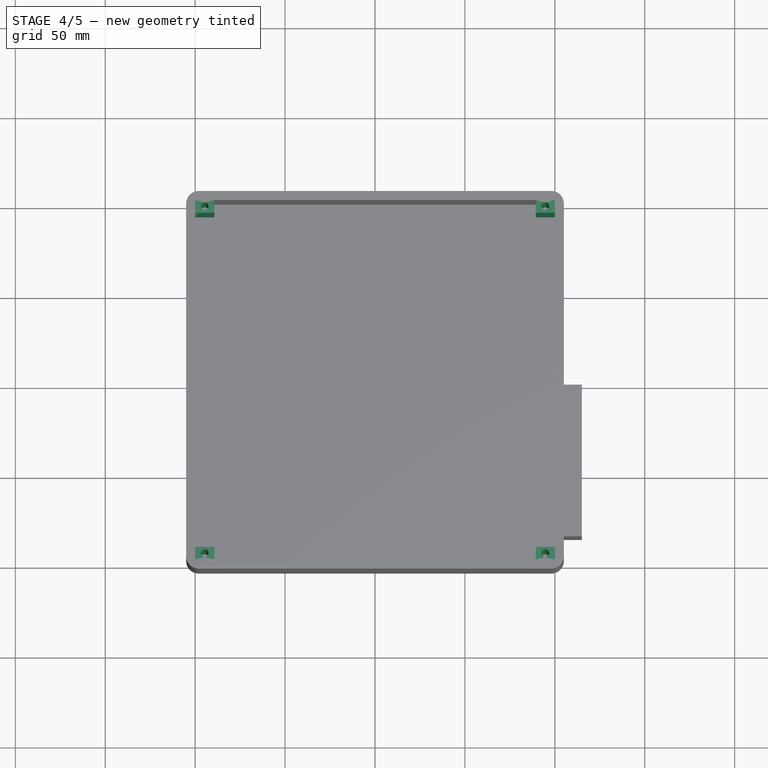
[diagram: stage 4 of 5 — top view after this stage's code; geometry added in this stage tinted green]
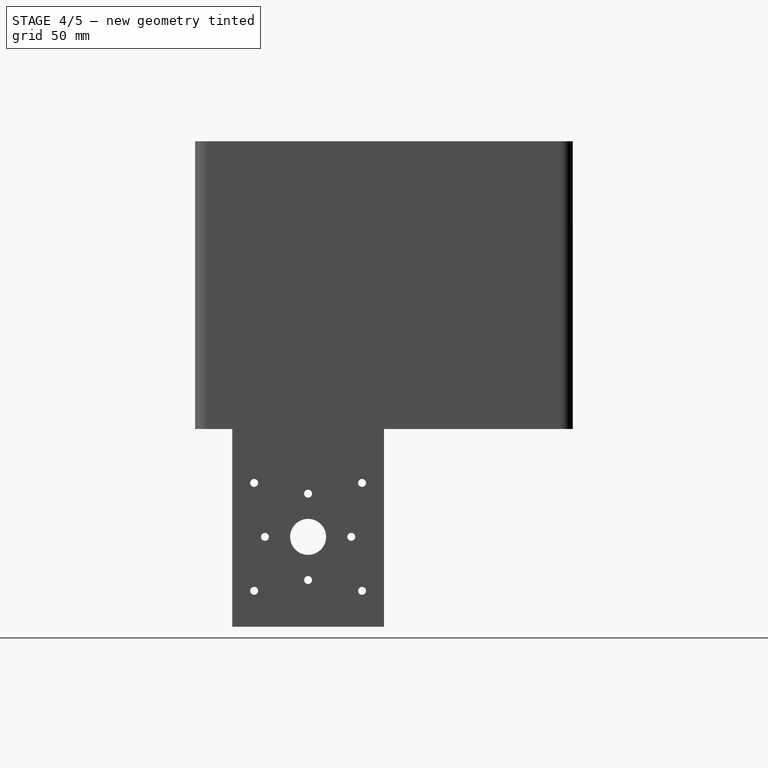
[diagram: stage 4 of 5 — right view after this stage's code; geometry added in this stage tinted green]
FEATURE [Sketcher::SketchObject] Sketch003
  FullyConstrained = true
  MapMode = 5
  Support = -> [XY_Plane]
  expr: Constraints[10] = Spreadsheet.lid_screw_size
  expr: Constraints[11] = Spreadsheet.lid_nut_size * 0.75
  expr: Constraints[12] = Spreadsheet.lid_nut_size * 0.5
  expr: Constraints[13] = Spreadsheet.box_inside_width / 2
  expr: Constraints[14] = Spreadsheet.box_inside_length / 2
  expr: Constraints[8] = Spreadsheet.lid_nut_size * 1.5
  expr: Constraints[9] = Spreadsheet.lid_nut_size
  sketch-geometry (5):
    g0: LineSegment StartX=-100 StartY=100 StartZ=0 EndX=-89.35 EndY=100 EndZ=0
    g1: LineSegment StartX=-89.35 StartY=100 StartZ=0 EndX=-89.35 EndY=92.9 EndZ=0
    g2: LineSegment StartX=-89.35 StartY=92.9 StartZ=0 EndX=-100 EndY=92.9 EndZ=0
    g3: LineSegment StartX=-100 StartY=92.9 StartZ=0 EndX=-100 EndY=100 EndZ=0
    g4: Circle CenterX=-94.675 CenterY=96.45 CenterZ=0 NormalX=0 NormalY=0 NormalZ=1 AngleXU=0 Radius=2.125
  constraints (15):
    c: Coincident(g0,g1)
    c: Coincident(g1,g2)
    c: Coincident(g2,g3)
    c: Coincident(g3,g0)
    c: Horizontal(g0)
    c: Horizontal(g2)
    c: Vertical(g1)
    c: Vertical(g3)
    c: DistanceX(g0,g0) = 10.65
    c: DistanceY(g1,g1) = 7.1
    c: Diameter(g4) = 4.25
    c: DistanceX(g0,g4) = 5.325
    c: DistanceY(g4,g0) = 3.55
    c: DistanceY(g-1,g0) = 100
    c: DistanceX(g0,g-1) = 100
FEATURE [PartDesign::Pad] Pad001
  BaseFeature = -> Pocket
  Direction = (0,0,1)
  Length = 155
  Length2 = 10
  Placement = pos=(0,0,-5) rot=(0,0,1;0rad)
  Profile = -> Sketch003
  ReferenceAxis = -> Sketch003 [N_Axis]
  Type = 0
  expr: Length = Spreadsheet.box_height - Spreadsheet.box_wall_thickness
FEATURE [Sketcher::SketchObject] Sketch004
  FullyConstrained = true
  MapMode = 5
  Placement = pos=(0,92.9,-5) rot=(1,0,0;1.5708rad)
  Support = -> [Pad001]
  expr: Constraints[10] = Spreadsheet.lid_nut_thickness
  expr: Constraints[11] = Spreadsheet.box_height - 5
  expr: Constraints[8] = Spreadsheet.lid_nut_size
  expr: Constraints[9] = Spreadsheet.box_inside_length / 2 - (Spreadsheet.lid_nut_size * 1.5 - Spreadsheet.lid_nut_size) * 0.5
  sketch-geometry (4):
    g0: LineSegment StartX=-98.225 StartY=155 StartZ=0 EndX=-91.125 EndY=155 EndZ=0
    g1: LineSegment StartX=-91.125 StartY=155 StartZ=0 EndX=-91.125 EndY=151.3 EndZ=0
    g2: LineSegment StartX=-91.125 StartY=151.3 StartZ=0 EndX=-98.225 EndY=151.3 EndZ=0
    g3: LineSegment StartX=-98.225 StartY=151.3 StartZ=0 EndX=-98.225 EndY=155 EndZ=0
  constraints (12):
    c: Coincident(g0,g1)
    c: Coincident(g1,g2)
    c: Coincident(g2,g3)
    c: Coincident(g3,g0)
    c: Horizontal(g0)
    c: Horizontal(g2)
    c: Vertical(g1)
    c: Vertical(g3)
    c: DistanceX(g0,g0) = 7.1
    c: DistanceX(g0,g-1) = 98.225
    c: DistanceY(g1,g1) = 3.7
    c: DistanceY(g-1,g0) = 155
FEATURE [Sketcher::SketchObject] Sketch005
  FullyConstrained = true
  expr: Constraints[10] = Spreadsheet.lid_nut_size * 1.5
  expr: Constraints[11] = Spreadsheet.lid_nut_size
  expr: Constraints[12] = Spreadsheet.lid_nut_size * 0.75
  expr: Constraints[13] = Spreadsheet.lid_nut_size * 0.5
  expr: Constraints[14] = Spreadsheet.lid_screw_size
  expr: Constraints[8] = Spreadsheet.box_inside_width / 2
  expr: Constraints[9] = Spreadsheet.box_inside_length / 2
  sketch-geometry (5):
    g0: LineSegment StartX=89.35 StartY=100 StartZ=0 EndX=100 EndY=100 EndZ=0
    g1: LineSegment StartX=100 StartY=100 StartZ=0 EndX=100 EndY=92.9 EndZ=0
    g2: LineSegment StartX=100 StartY=92.9 StartZ=0 EndX=89.35 EndY=92.9 EndZ=0
    g3: LineSegment StartX=89.35 StartY=92.9 StartZ=0 EndX=89.35 EndY=100 EndZ=0
    g4: Circle CenterX=94.675 CenterY=96.45 CenterZ=0 NormalX=0 NormalY=0 NormalZ=1 AngleXU=0 Radius=2.125
  constraints (15):
    c: Coincident(g0,g1)
    c: Coincident(g1,g2)
    c: Coincident(g2,g3)
    c: Coincident(g3,g0)
    c: Horizontal(g0)
    c: Horizontal(g2)
    c: Vertical(g1)
    c: Vertical(g3)
    c: DistanceY(g-1,g0) = 100
    c: DistanceX(g-1,g0) = 100
    c: DistanceX(g2,g2) = 10.65
    c: DistanceY(g3,g3) = 7.1
    c: DistanceX(g4,g0) = 5.325
    c: DistanceY(g4,g0) = 3.55
    c: Diameter(g4) = 4.25
FEATURE [PartDesign::Pad] Pad002
  BaseFeature = -> Pad001
  Direction = (0,0,1)
  Length = 155
  Length2 = 10
  Placement = pos=(0,0,-5) rot=(0,0,1;0rad)
  Profile = -> Sketch005
  ReferenceAxis = -> Sketch005 [N_Axis]
  Type = 0
  expr: Length = Spreadsheet.box_height - Spreadsheet.box_wall_thickness
FEATURE [Sketcher::SketchObject] Sketch006
  FullyConstrained = true
  expr: Constraints[10] = Spreadsheet.lid_screw_size
  expr: Constraints[11] = Spreadsheet.lid_nut_size * 0.75
  expr: Constraints[12] = Spreadsheet.lid_nut_size * 0.5
  expr: Constraints[13] = -(Spreadsheet.box_inside_width / 2)
  expr: Constraints[14] = Spreadsheet.box_inside_length / 2
  expr: Constraints[8] = Spreadsheet.lid_nut_size
  expr: Constraints[9] = Spreadsheet.lid_nut_size * 1.5
  sketch-geometry (5):
    g0: LineSegment StartX=-100 StartY=-92.9 StartZ=0 EndX=-89.35 EndY=-92.9 EndZ=0
    g1: LineSegment StartX=-89.35 StartY=-92.9 StartZ=0 EndX=-89.35 EndY=-100 EndZ=0
    g2: LineSegment StartX=-89.35 StartY=-100 StartZ=0 EndX=-100 EndY=-100 EndZ=0
    g3: LineSegment StartX=-100 StartY=-100 StartZ=0 EndX=-100 EndY=-92.9 EndZ=0
    g4: Circle CenterX=-94.675 CenterY=-96.45 CenterZ=0 NormalX=0 NormalY=0 NormalZ=1 AngleXU=0 Radius=2.125
  constraints (15):
    c: Coincident(g0,g1)
    c: Coincident(g1,g2)
    c: Coincident(g2,g3)
    c: Coincident(g3,g0)
    c: Horizontal(g0)
    c: Horizontal(g2)
    c: Vertical(g1)
    c: Vertical(g3)
    c: DistanceY(g1,g1) = 7.1
    c: DistanceX(g0,g0) = 10.65
    c: Diameter(g4) = 4.25
    c: DistanceX(g2,g4) = 5.325
    c: DistanceY(g2,g4) = 3.55
    c: DistanceY(g-1,g2) = -100
    c: DistanceX(g2,g-1) = 100
FEATURE [Sketcher::SketchObject] Sketch007
  FullyConstrained = true
  expr: Constraints[10] = Spreadsheet.lid_screw_size
  expr: Constraints[11] = Spreadsheet.lid_nut_size * 0.75
  expr: Constraints[12] = Spreadsheet.lid_nut_size * 0.5
  expr: Constraints[13] = -(Spreadsheet.box_inside_width / 2)
  expr: Constraints[14] = Spreadsheet.box_inside_length / 2
  expr: Constraints[8] = Spreadsheet.lid_nut_size
  expr: Constraints[9] = Spreadsheet.lid_nut_size * 1.5
  sketch-geometry (5):
    g0: LineSegment StartX=89.35 StartY=-92.9 StartZ=0 EndX=100 EndY=-92.9 EndZ=0
    g1: LineSegment StartX=100 StartY=-92.9 StartZ=0 EndX=100 EndY=-100 EndZ=0
    g2: LineSegment StartX=100 StartY=-100 StartZ=0 EndX=89.35 EndY=-100 EndZ=0
    g3: LineSegment StartX=89.35 StartY=-100 StartZ=0 EndX=89.35 EndY=-92.9 EndZ=0
    g4: Circle CenterX=94.675 CenterY=-96.45 CenterZ=0 NormalX=0 NormalY=0 NormalZ=1 AngleXU=0 Radius=2.125
  constraints (15):
    c: Coincident(g0,g1)
    c: Coincident(g1,g2)
    c: Coincident(g2,g3)
    c: Coincident(g3,g0)
    c: Horizontal(g0)
    c: Horizontal(g2)
    c: Vertical(g1)
    c: Vertical(g3)
    c: DistanceY(g1,g1) = 7.1
    c: DistanceX(g0,g0) = 10.65
    c: Diameter(g4) = 4.25
    c: DistanceX(g2,g4) = 5.325
    c: DistanceY(g2,g4) = 3.55
    c: DistanceY(g-1,g2) = -100
    c: DistanceX(g-1,g1) = 100
FEATURE [PartDesign::Pad] Pad003
  BaseFeature = -> Pad002
  Direction = (0,0,1)
  Length = 155
  Length2 = 10
  Placement = pos=(0,0,-5) rot=(0,0,1;0rad)
  Profile = -> Sketch006
  ReferenceAxis = -> Sketch006 [N_Axis]
  Type = 0
  expr: Length = Spreadsheet.box_height - Spreadsheet.box_wall_thickness
FEATURE [PartDesign::Pad] Pad004
  BaseFeature = -> Pad003
  Direction = (0,0,1)
  Length = 155
  Length2 = 10
  Placement = pos=(0,0,-5) rot=(0,0,1;0rad)
  Profile = -> Sketch007
  ReferenceAxis = -> Sketch007 [N_Axis]
  Type = 0
  expr: Length = Spreadsheet.box_height - Spreadsheet.box_wall_thickness
FEATURE [Sketcher::SketchObject] Sketch008
  FullyConstrained = true
  MapMode = 5
  Placement = pos=(0,92.9,-5) rot=(1,0,0;1.5708rad)
  Support = -> [Pad001]
  expr: Constraints[10] = Spreadsheet.box_height - 5
  expr: Constraints[11] = Spreadsheet.box_inside_length / 2 - (Spreadsheet.lid_nut_size * 1.5 - Spreadsheet.lid_nut_size) * 0.5
  expr: Constraints[8] = Spreadsheet.lid_nut_size
  expr: Constraints[9] = Spreadsheet.lid_nut_thickness
  sketch-geometry (4):
    g0: LineSegment StartX=91.125 StartY=155 StartZ=0 EndX=98.225 EndY=155 EndZ=0
    g1: LineSegment StartX=98.225 StartY=155 StartZ=0 EndX=98.225 EndY=151.3 EndZ=0
    g2: LineSegment StartX=98.225 StartY=151.3 StartZ=0 EndX=91.125 EndY=151.3 EndZ=0
    g3: LineSegment StartX=91.125 StartY=151.3 StartZ=0 EndX=91.125 EndY=155 EndZ=0
  constraints (12):
    c: Coincident(g0,g1)
    c: Coincident(g1,g2)
    c: Coincident(g2,g3)
    c: Coincident(g3,g0)
    c: Horizontal(g0)
    c: Horizontal(g2)
    c: Vertical(g1)
    c: Vertical(g3)
    c: DistanceX(g0,g0) = 7.1
    c: DistanceY(g1,g1) = 3.7
    c: DistanceY(g-1,g0) = 155
    c: DistanceX(g-1,g0) = 98.225
FEATURE [PartDesign::Pocket] Pocket001
  BaseFeature = -> Pad004
  Direction = (0,1,-2e-16)
  Length = 8.1
  Length2 = 5
  Placement = pos=(0,0,-5) rot=(0,0,1;0rad)
  Profile = -> Sketch004
  ReferenceAxis = -> Sketch004 [N_Axis]
  Type = 0
  expr: Length = Spreadsheet.lid_nut_size + 1
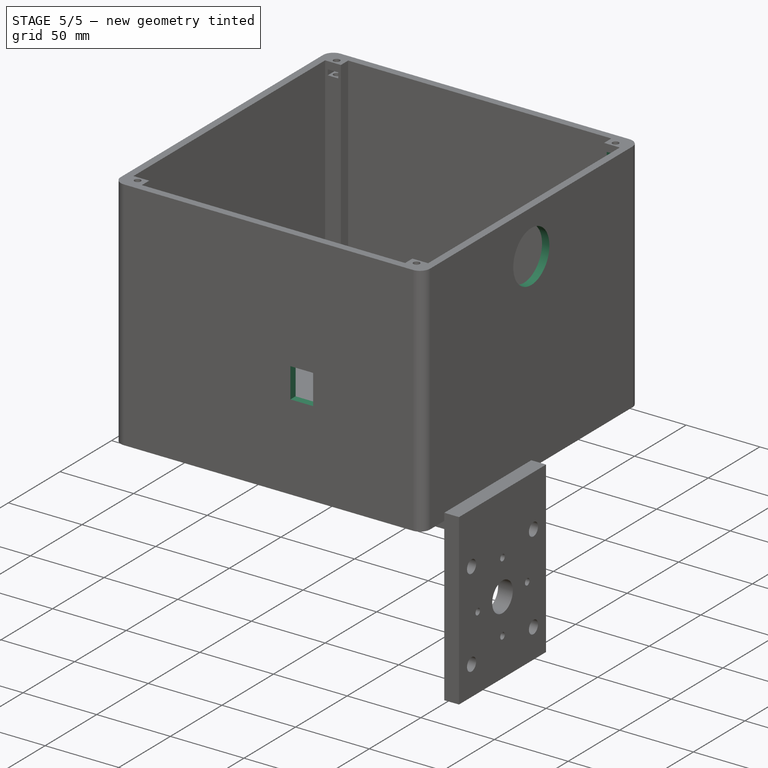
[diagram: stage 5 of 5 — iso view after this stage's code; geometry added in this stage tinted green]
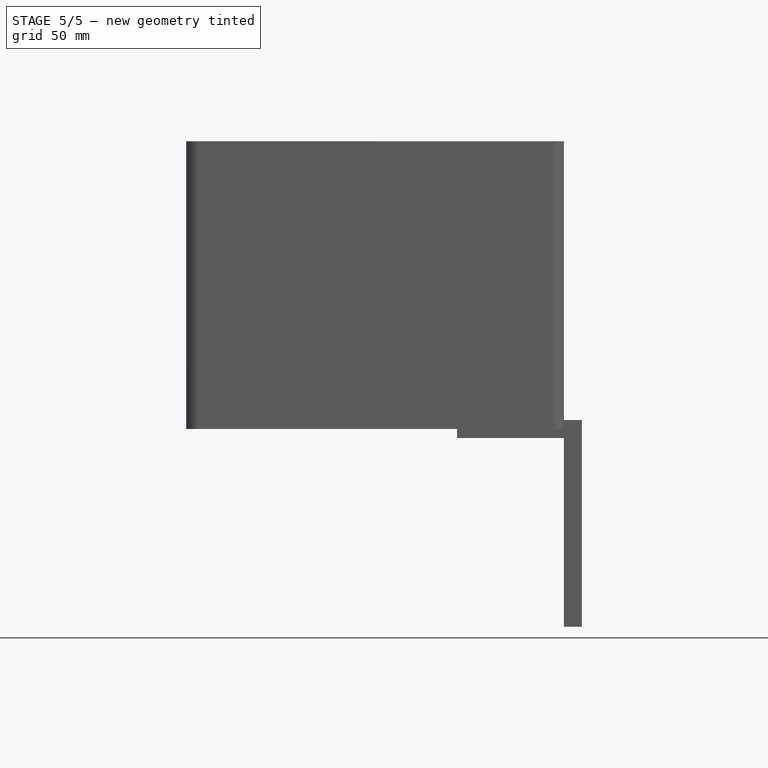
[diagram: stage 5 of 5 — front view after this stage's code; geometry added in this stage tinted green]
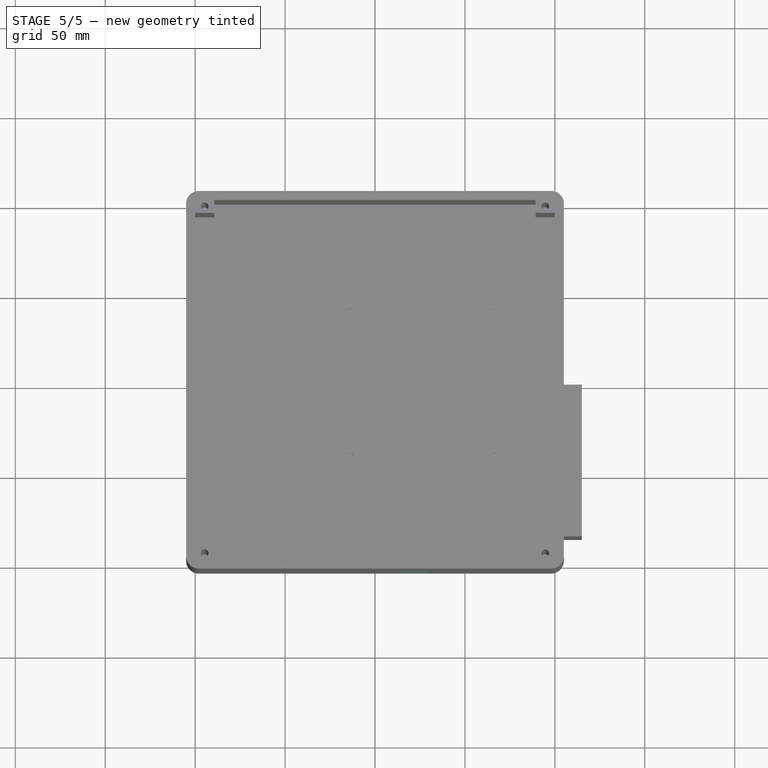
[diagram: stage 5 of 5 — top view after this stage's code; geometry added in this stage tinted green]
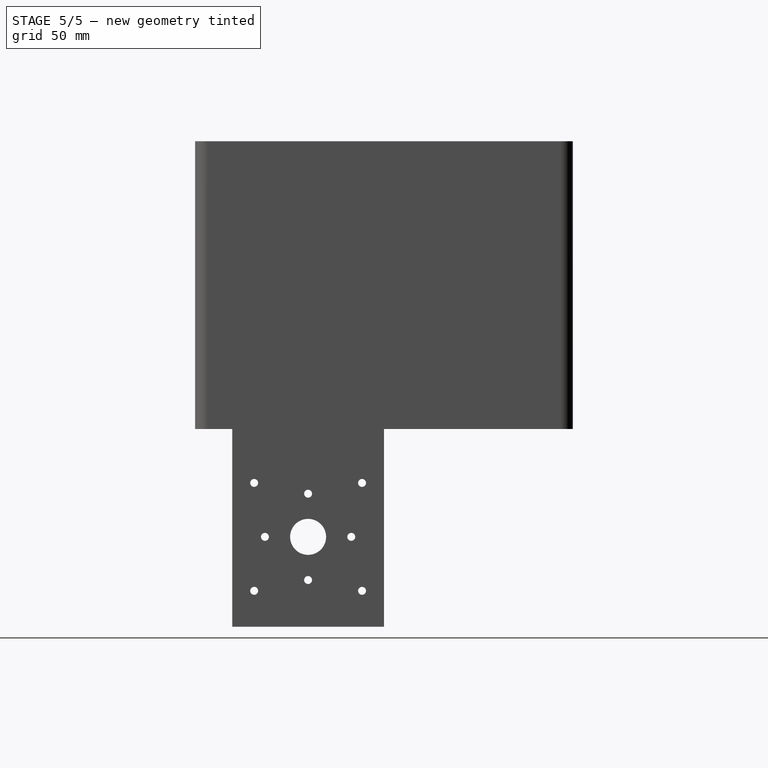
[diagram: stage 5 of 5 — right view after this stage's code; geometry added in this stage tinted green]
FEATURE [PartDesign::Pocket] Pocket002
  BaseFeature = -> Pocket001
  Direction = (0,1,-2e-16)
  Length = 8.1
  Length2 = 5
  Placement = pos=(0,0,-5) rot=(0,0,1;0rad)
  Profile = -> Sketch008
  ReferenceAxis = -> Sketch008 [N_Axis]
  Type = 0
  expr: Length = Spreadsheet.lid_nut_size + 1
FEATURE [Sketcher::SketchObject] Sketch009
  FullyConstrained = true
  MapMode = 5
  Placement = pos=(0,-92.9,-5) rot=(0,0.707107,0.707107;3.14159rad)
  Support = -> [Pocket002]
  expr: Constraints[10] = Spreadsheet.box_inside_length / 2 - (Spreadsheet.lid_nut_size * 1.5 - Spreadsheet.lid_nut_size) * 0.5
  expr: Constraints[11] = Spreadsheet.box_height - 5
  expr: Constraints[8] = Spreadsheet.lid_nut_size
  expr: Constraints[9] = Spreadsheet.lid_nut_thickness
  sketch-geometry (4):
    g0: LineSegment StartX=-98.225 StartY=155 StartZ=0 EndX=-91.125 EndY=155 EndZ=0
    g1: LineSegment StartX=-91.125 StartY=155 StartZ=0 EndX=-91.125 EndY=151.3 EndZ=0
    g2: LineSegment StartX=-91.125 StartY=151.3 StartZ=0 EndX=-98.225 EndY=151.3 EndZ=0
    g3: LineSegment StartX=-98.225 StartY=151.3 StartZ=0 EndX=-98.225 EndY=155 EndZ=0
  constraints (12):
    c: Coincident(g0,g1)
    c: Coincident(g1,g2)
    c: Coincident(g2,g3)
    c: Coincident(g3,g0)
    c: Horizontal(g0)
    c: Horizontal(g2)
    c: Vertical(g1)
    c: Vertical(g3)
    c: DistanceX(g0,g0) = 7.1
    c: DistanceY(g3,g3) = 3.7
    c: DistanceX(g0,g-1) = 98.225
    c: DistanceY(g-1,g0) = 155
FEATURE [Sketcher::SketchObject] Sketch010
  FullyConstrained = true
  MapMode = 5
  Placement = pos=(0,-92.9,-5) rot=(0,0.707107,0.707107;3.14159rad)
  Support = -> [Pocket002]
  expr: Constraints[10] = Spreadsheet.box_height - 5
  expr: Constraints[11] = Spreadsheet.box_inside_length / 2 - (Spreadsheet.lid_nut_size * 1.5 - Spreadsheet.lid_nut_size) * 0.5
  expr: Constraints[8] = Spreadsheet.lid_nut_size
  expr: Constraints[9] = Spreadsheet.lid_nut_thickness
  sketch-geometry (4):
    g0: LineSegment StartX=91.125 StartY=155 StartZ=0 EndX=98.225 EndY=155 EndZ=0
    g1: LineSegment StartX=98.225 StartY=155 StartZ=0 EndX=98.225 EndY=151.3 EndZ=0
    g2: LineSegment StartX=98.225 StartY=151.3 StartZ=0 EndX=91.125 EndY=151.3 EndZ=0
    g3: LineSegment StartX=91.125 StartY=151.3 StartZ=0 EndX=91.125 EndY=155 EndZ=0
  constraints (12):
    c: Coincident(g0,g1)
    c: Coincident(g1,g2)
    c: Coincident(g2,g3)
    c: Coincident(g3,g0)
    c: Horizontal(g0)
    c: Horizontal(g2)
    c: Vertical(g1)
    c: Vertical(g3)
    c: DistanceX(g0,g0) = 7.1
    c: DistanceY(g3,g3) = 3.7
    c: DistanceY(g-1,g0) = 155
    c: DistanceX(g-1,g0) = 98.225
FEATURE [PartDesign::Pocket] Pocket003
  BaseFeature = -> Pocket002
  Direction = (0,-1,2e-16)
  Length = 8.1
  Length2 = 5
  Placement = pos=(0,0,-5) rot=(0,0,1;0rad)
  Profile = -> Sketch009
  ReferenceAxis = -> Sketch009 [N_Axis]
  Type = 0
  expr: Length = Spreadsheet.lid_nut_size + 1
FEATURE [PartDesign::Pocket] Pocket004
  BaseFeature = -> Pocket003
  Direction = (0,-1,2e-16)
  Length = 8.1
  Length2 = 5
  Placement = pos=(0,0,-5) rot=(0,0,1;0rad)
  Profile = -> Sketch010
  ReferenceAxis = -> Sketch010 [N_Axis]
  Type = 0
  expr: Length = Spreadsheet.lid_nut_size + 1
FEATURE [Sketcher::SketchObject] Sketch011
  FullyConstrained = true
  MapMode = 5
  Support = -> [XY_Plane]
  expr: Constraints[0] = 0
  expr: Constraints[10] = Spreadsheet.motor_screw_size
  expr: Constraints[11] = Spreadsheet.motor_screw_distance
  expr: Constraints[12] = Spreadsheet.motor_screw_distance
  expr: Constraints[1] = 0
  expr: Constraints[23] = Spreadsheet.hall_effect_x
  expr: Constraints[24] = Spreadsheet.hall_effect_y
  expr: Constraints[25] = Spreadsheet.hall_effect_y / 2
  expr: Constraints[26] = Spreadsheet.hall_effect_distance
  expr: Constraints[28] = Spreadsheet.hall_effect_distance
  expr: Constraints[29] = 14
  expr: Constraints[2] = Spreadsheet.motor_size
  expr: Constraints[3] = 0
  expr: Constraints[4] = Spreadsheet.motor_screw_distance
  expr: Constraints[5] = Spreadsheet.motor_screw_size
  expr: Constraints[6] = Spreadsheet.motor_screw_distance
  expr: Constraints[8] = Spreadsheet.motor_screw_size
  expr: Constraints[9] = Spreadsheet.motor_screw_size
  sketch-geometry (10):
    g0: Circle CenterX=0 CenterY=0 CenterZ=0 NormalX=0 NormalY=0 NormalZ=1 AngleXU=0 Radius=10.2
    g1: Circle CenterX=0 CenterY=25 CenterZ=0 NormalX=0 NormalY=0 NormalZ=1 AngleXU=0 Radius=2.2
    g2: Circle CenterX=25 CenterY=0 CenterZ=0 NormalX=0 NormalY=0 NormalZ=1 AngleXU=0 Radius=2.2
    g3: Circle CenterX=-25 CenterY=0 CenterZ=0 NormalX=0 NormalY=0 NormalZ=1 AngleXU=0 Radius=2.2
    g4: Circle CenterX=0 CenterY=-25 CenterZ=0 NormalX=0 NormalY=0 NormalZ=1 AngleXU=0 Radius=2.2
    g5: LineSegment StartX=65 StartY=0.75 StartZ=0 EndX=70 EndY=0.75 EndZ=0
    g6: LineSegment StartX=70 StartY=0.75 StartZ=0 EndX=70 EndY=-0.75 EndZ=0
    g7: LineSegment StartX=70 StartY=-0.75 StartZ=0 EndX=65 EndY=-0.75 EndZ=0
    g8: LineSegment StartX=65 StartY=-0.75 StartZ=0 EndX=65 EndY=0.75 EndZ=0
    g9: Circle CenterX=-65 CenterY=0 CenterZ=0 NormalX=0 NormalY=0 NormalZ=1 AngleXU=0 Radius=7
  constraints (30):
    c: DistanceX(g0,g-1) = 0
    c: DistanceY(g-1,g0) = 0
    c: Diameter(g0) = 20.4
    c: DistanceX(g0,g1) = 0
    c: DistanceY(g0,g1) = 25
    c: Diameter(g1) = 4.4
    c: DistanceX(g0,g2) = 25
    c: DistanceY(g0,g2) = 0
    c: Diameter(g2) = 4.4
    c: Diameter(g3) = 4.4
    c: Diameter(g4) = 4.4
    c: DistanceY(g4,g0) = 25
    c: DistanceX(g3,g0) = 25
    c: DistanceX(g4,g0) = 0
    c: DistanceY(g0,g3) = 0
    c: Coincident(g5,g6)
    c: Coincident(g6,g7)
    c: Coincident(g7,g8)
    c: Coincident(g8,g5)
    c: Horizontal(g5)
    c: Horizontal(g7)
    c: Vertical(g6)
    c: Vertical(g8)
    c: DistanceX(g5,g5) = 5
    c: DistanceY(g8,g8) = 1.5
    c: DistanceY(g0,g5) = 0.75
    c: DistanceX(g0,g5) = 65
    c: PointOnObject(g9,g-1)
    c: DistanceX(g9,g0) = 65
    c: Diameter(g9) = 14
FEATURE [PartDesign::Pocket] Pocket005
  BaseFeature = -> Pocket004
  Direction = (0,0,-1)
  Length = 5
  Length2 = 5
  Placement = pos=(0,0,-5) rot=(0,0,1;0rad)
  Profile = -> Sketch011
  ReferenceAxis = -> Sketch011 [N_Axis]
  Type = 1
FEATURE [Sketcher::SketchObject] Sketch021
  FullyConstrained = true
  MapMode = 5
  Placement = pos=(0,-105,-5) rot=(1,0,0;1.5708rad)
  Support = -> [Pocket005]
  expr: Constraints[10] = Spreadsheet.box_wall_thickness + Spreadsheet.box_height / 3
  expr: Constraints[11] = 15
  expr: Constraints[8] = Spreadsheet.switch_length
  expr: Constraints[9] = Spreadsheet.switch_width
  sketch-geometry (4):
    g0: LineSegment StartX=15 StartY=78.7333 StartZ=0 EndX=30.4 EndY=78.7333 EndZ=0
    g1: LineSegment StartX=30.4 StartY=78.7333 StartZ=0 EndX=30.4 EndY=58.3333 EndZ=0
    g2: LineSegment StartX=30.4 StartY=58.3333 StartZ=0 EndX=15 EndY=58.3333 EndZ=0
    g3: LineSegment StartX=15 StartY=58.3333 StartZ=0 EndX=15 EndY=78.7333 EndZ=0
  constraints (12):
    c: Coincident(g0,g1)
    c: Coincident(g1,g2)
    c: Coincident(g2,g3)
    c: Coincident(g3,g0)
    c: Horizontal(g0)
    c: Horizontal(g2)
    c: Vertical(g1)
    c: Vertical(g3)
    c: DistanceY(g1,g1) = 20.4
    c: DistanceX(g0,g0) = 15.4
    c: DistanceY(g-1,g2) = 58.3333
    c: DistanceX(g-1,g2) = 15
FEATURE [PartDesign::Pocket] Pocket010
  BaseFeature = -> Pocket005
  Direction = (0,1,-2e-16)
  Length = 5
  Length2 = 5
  Placement = pos=(0,0,-5) rot=(0,0,1;0rad)
  Profile = -> Sketch021
  ReferenceAxis = -> Sketch021 [N_Axis]
  Type = 0
  expr: Length = Spreadsheet.box_wall_thickness
FEATURE [Sketcher::SketchObject] Sketch022
  FullyConstrained = true
  MapMode = 5
  Placement = pos=(105,0,-5) rot=(0.57735,0.57735,0.57735;2.0944rad)
  Support = -> [Pocket010]
  expr: Constraints[0] = 35
  expr: Constraints[2] = Spreadsheet.box_height + Spreadsheet.box_wall_thickness - 25 - Spreadsheet.antenna_mount_screw_hole_distance / 2 + 20
  sketch-geometry (1):
    g0: Circle CenterX=0 CenterY=130 CenterZ=0 NormalX=0 NormalY=0 NormalZ=1 AngleXU=0 Radius=17.5
  constraints (3):
    c: Diameter(g0) = 35
    c: DistanceX(g-1,g0) = 0
    c: DistanceY(g-1,g0) = 130
FEATURE [PartDesign::Pocket] Pocket011
  BaseFeature = -> Pocket010
  Direction = (-1,0,0)
  Length = 5
  Length2 = 5
  Placement = pos=(0,0,-5) rot=(0,0,1;0rad)
  Profile = -> Sketch022
  ReferenceAxis = -> Sketch022 [N_Axis]
  Type = 0
  expr: Length = Spreadsheet.box_wall_thickness
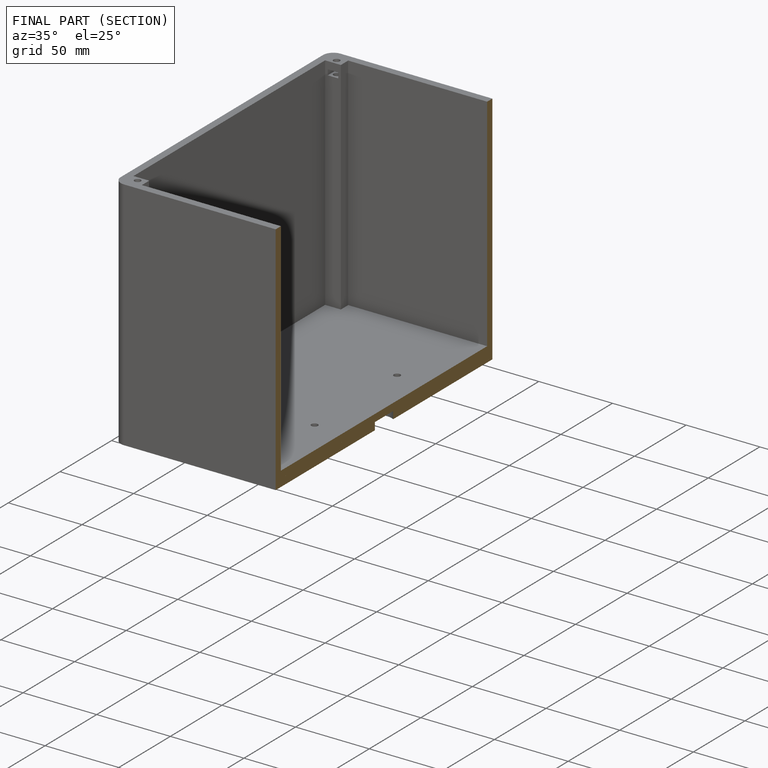
[diagram: finished part — half-section view (interior)]
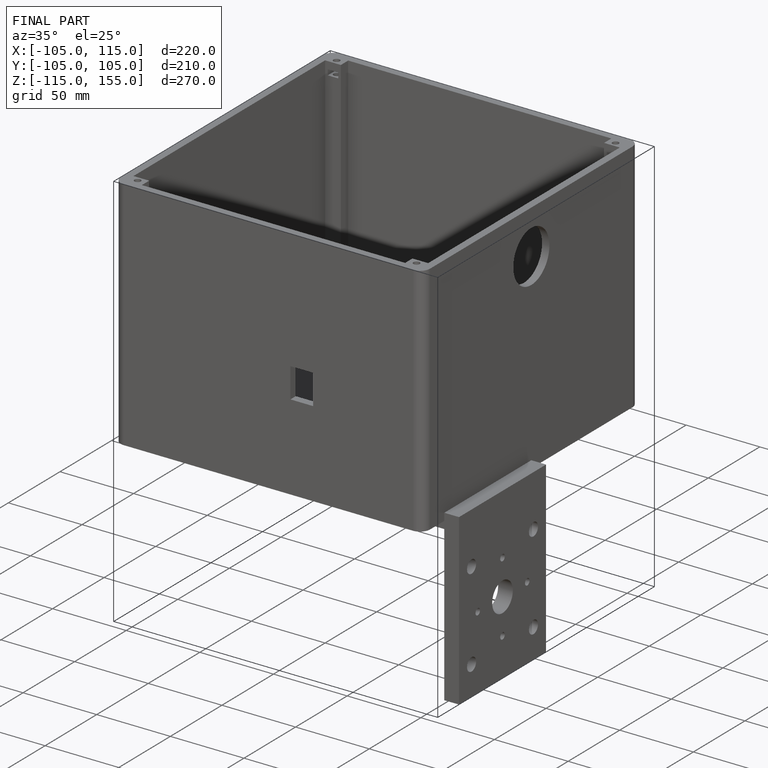
[diagram: finished part — iso view with bounding-box wireframe]
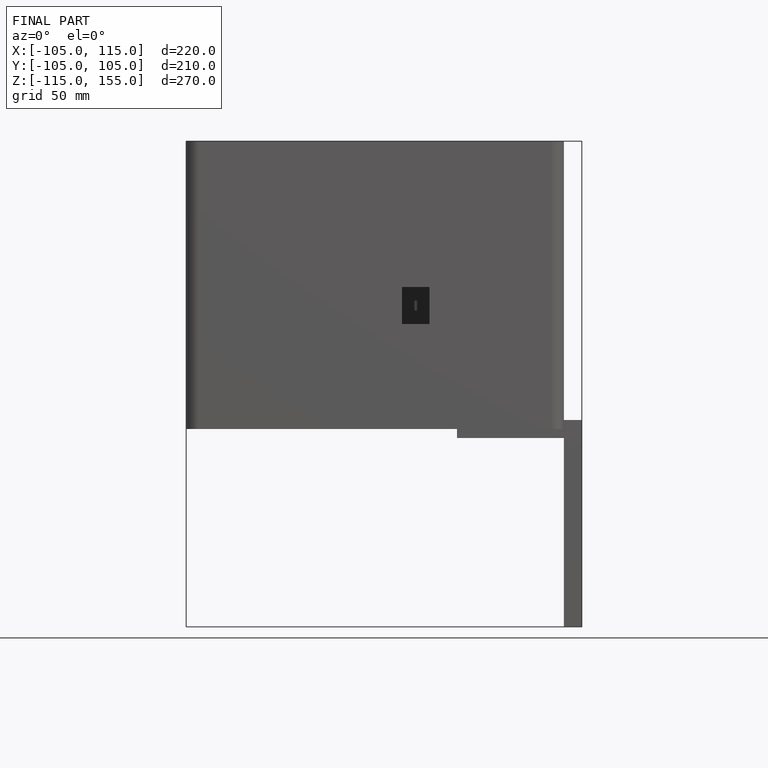
[diagram: finished part — front view with bounding-box wireframe]
